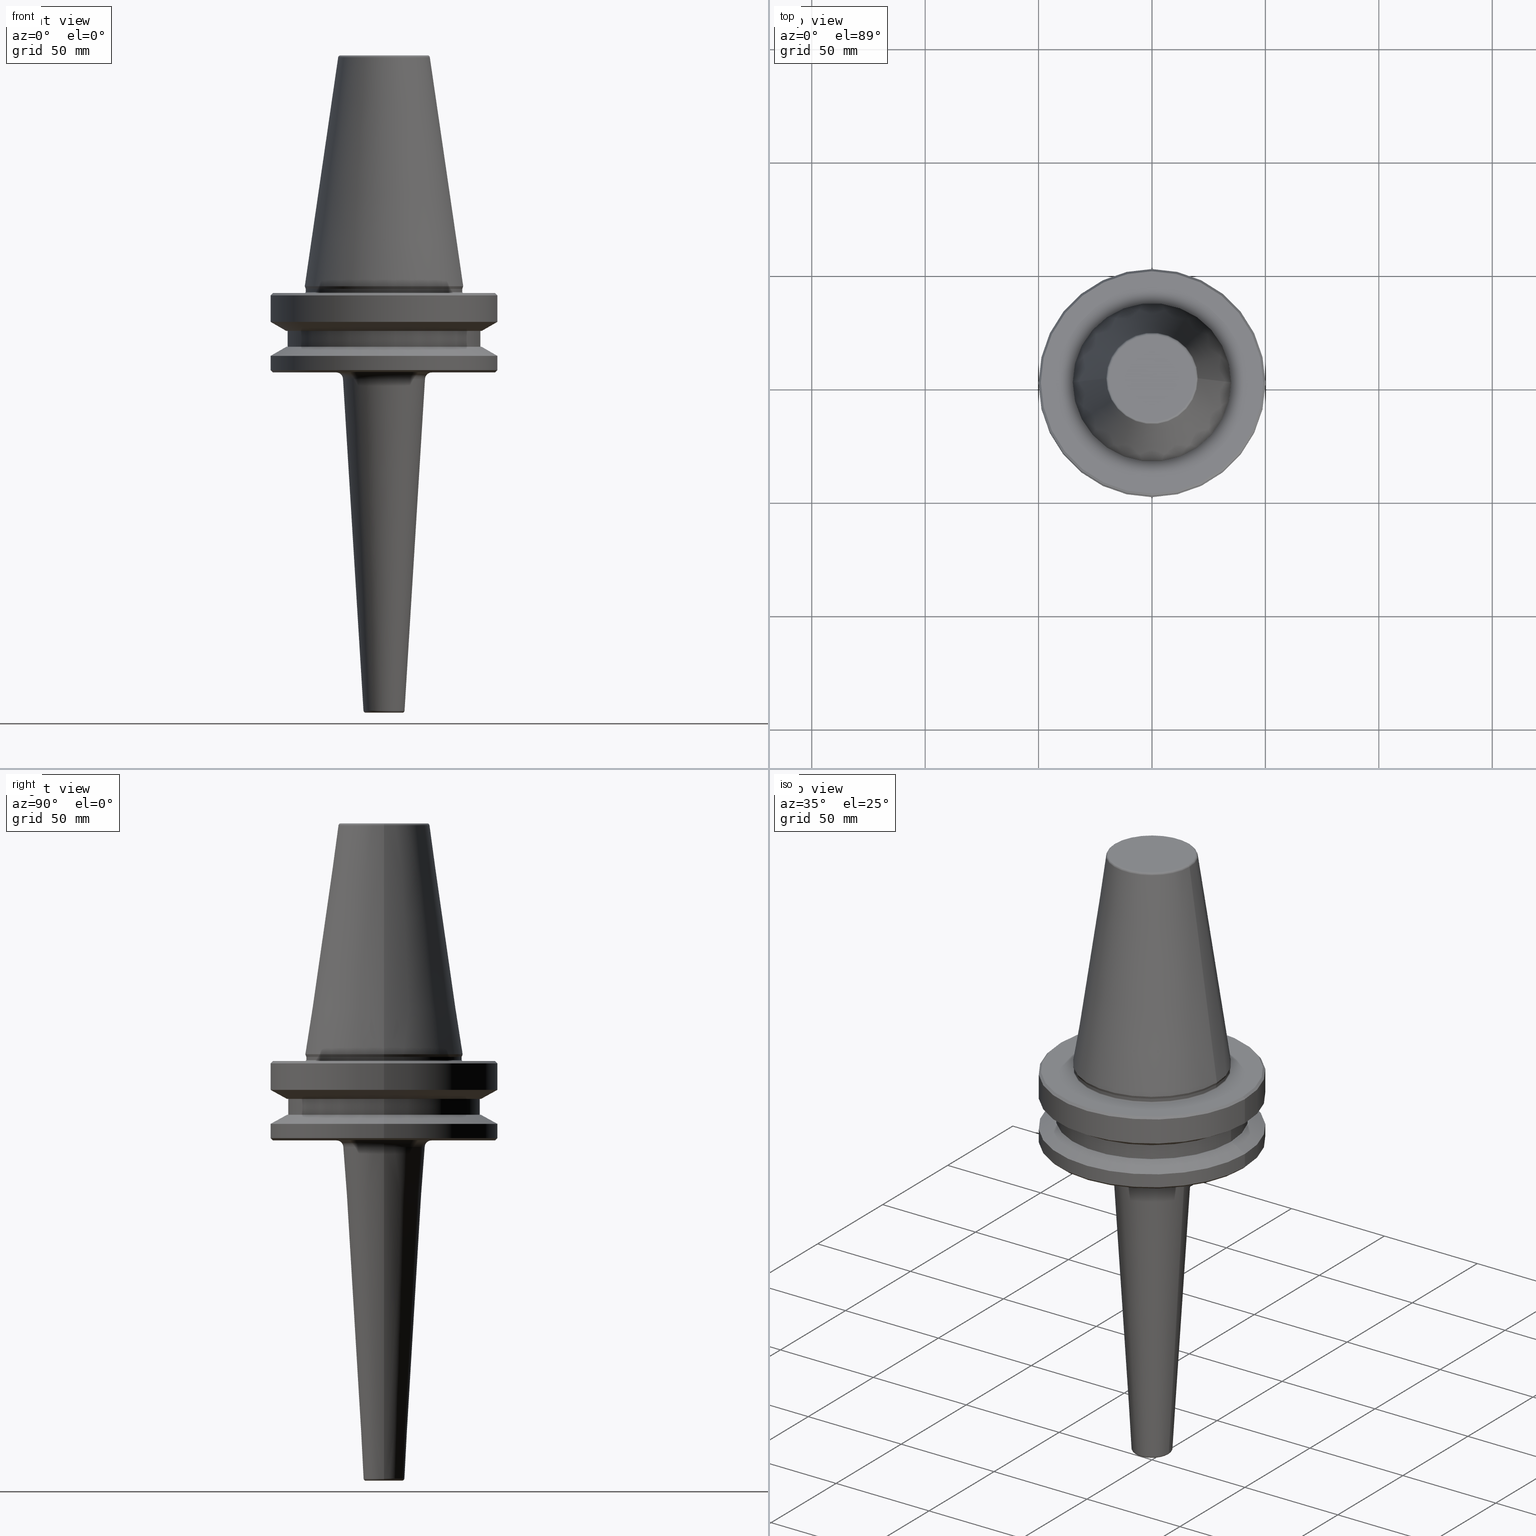
[diagram: canonical four-view strip — front | top / right | iso, engineering-drawing reading convention]
A machine part, canonical four-view strip (front | top / right | iso — engineering-drawing reading convention). The complete STEP part file that produces these views, byte-faithful:
ISO-10303-21;
HEADER;
FILE_DESCRIPTION (( 'STEP AP203' ),
    '1' );
FILE_NAME ('BT50 MCA10 150 AD+B-2.5G 25000 SL.STEP',
    '2019-05-24T10:52:06',
    ( '' ),
    ( '' ),
    'SwSTEP 2.0',
    'SolidWorks 2014',
    '' );
FILE_SCHEMA (( 'CONFIG_CONTROL_DESIGN' ));
ENDSEC;

DATA;
#1 = ORIENTED_EDGE ( 'NONE', *, *, #300, .F. ) ;
#2 = EDGE_CURVE ( 'NONE', #414, #900, #586, .T. ) ;
#3 = EDGE_CURVE ( 'NONE', #913, #152, #542, .T. ) ;
#4 = LOCAL_TIME ( 16, 22, 6.000000000000000000, #213 ) ;
#5 = DIRECTION ( 'NONE',  ( 1.000000000000000000, 0.0000000000000000000, 0.0000000000000000000 ) ) ;
#6 = CARTESIAN_POINT ( 'NONE',  ( 0.0000000000000000000, 0.0000000000000000000, -187.0000000000000000 ) ) ;
#7 = EDGE_CURVE ( 'NONE', #951, #463, #714, .T. ) ;
#8 = ORIENTED_EDGE ( 'NONE', *, *, #226, .T. ) ;
#9 = EDGE_LOOP ( 'NONE', ( #645, #706 ) ) ;
#10 = VERTEX_POINT ( 'NONE', #782 ) ;
#11 = DIRECTION ( 'NONE',  ( 1.000000000000000000, 0.0000000000000000000, 0.0000000000000000000 ) ) ;
#12 = EDGE_LOOP ( 'NONE', ( #454, #73, #790, #142 ) ) ;
#13 = ORIENTED_EDGE ( 'NONE', *, *, #836, .F. ) ;
#14 = CIRCLE ( 'NONE', #589, 1.000000000000000900 ) ;
#15 = EDGE_CURVE ( 'NONE', #568, #960, #564, .T. ) ;
#16 = DIRECTION ( 'NONE',  ( -0.0000000000000000000, -0.0000000000000000000, 1.000000000000000000 ) ) ;
#17 = CIRCLE ( 'NONE', #932, 42.50000000000000000 ) ;
#18 = DIRECTION ( 'NONE',  ( 1.000000000000000000, 0.0000000000000000000, 0.0000000000000000000 ) ) ;
#19 = EDGE_CURVE ( 'NONE', #197, #607, #383, .T. ) ;
#20 = EDGE_LOOP ( 'NONE', ( #945, #495 ) ) ;
#21 = EDGE_CURVE ( 'NONE', #568, #951, #521, .T. ) ;
#22 = DIRECTION ( 'NONE',  ( -1.000000000000000000, 0.0000000000000000000, 0.0000000000000000000 ) ) ;
#23 = UNCERTAINTY_MEASURE_WITH_UNIT (LENGTH_MEASURE( 1.000000000000000100E-005 ), #835, 'distance_accuracy_value', 'NONE');
#24 = CARTESIAN_POINT ( 'NONE',  ( 0.0000000000000000000, 0.0000000000000000000, -188.0000000000000000 ) ) ;
#25 = DIRECTION ( 'NONE',  ( -1.000000000000000000, 0.0000000000000000000, 0.0000000000000000000 ) ) ;
#26 = CALENDAR_DATE ( 2019, 24, 5 ) ;
#27 = DIRECTION ( 'NONE',  ( -0.0000000000000000000, -0.0000000000000000000, 1.000000000000000000 ) ) ;
#28 = CARTESIAN_POINT ( 'NONE',  ( 18.25000000000003600, 0.0000000000000000000, -38.00000000000000700 ) ) ;
#29 = CONICAL_SURFACE ( 'NONE', #974, 34.92499999999999700, 0.1448138465474120600 ) ;
#30 = CARTESIAN_POINT ( 'NONE',  ( 0.0000000000000000000, 0.0000000000000000000, 100.7999999999999800 ) ) ;
#31 = ORIENTED_EDGE ( 'NONE', *, *, #332, .T. ) ;
#32 = EDGE_CURVE ( 'NONE', #602, #260, #355, .T. ) ;
#33 = ORIENTED_EDGE ( 'NONE', *, *, #350, .F. ) ;
#34 = EDGE_CURVE ( 'NONE', #960, #568, #147, .T. ) ;
#35 = DIRECTION ( 'NONE',  ( -0.0000000000000000000, -0.0000000000000000000, 1.000000000000000000 ) ) ;
#36 = ORIENTED_EDGE ( 'NONE', *, *, #825, .T. ) ;
#37 = PRODUCT_DEFINITION_SHAPE ( 'NONE', 'NONE',  #336 ) ;
#38 = ORIENTED_EDGE ( 'NONE', *, *, #709, .T. ) ;
#39 = ADVANCED_FACE ( 'NONE', ( #557 ), #401, .T. ) ;
#40 = VECTOR ( 'NONE', #516, 1000.000000000000000 ) ;
#41 = AXIS2_PLACEMENT_3D ( 'NONE', #172, #712, #639 ) ;
#42 = PERSON_AND_ORGANIZATION ( #53, #186 ) ;
#43 =( NAMED_UNIT ( * ) PLANE_ANGLE_UNIT ( ) SI_UNIT ( $, .RADIAN. ) );
#44 = DIRECTION ( 'NONE',  ( -0.0000000000000000000, -0.0000000000000000000, 1.000000000000000000 ) ) ;
#45 = AXIS2_PLACEMENT_3D ( 'NONE', #987, #479, #323 ) ;
#46 = PERSON_AND_ORGANIZATION_ROLE ( 'creator' ) ;
#47 = SECURITY_CLASSIFICATION ( '', '', #295 ) ;
#48 = EDGE_CURVE ( 'NONE', #463, #152, #118, .T. ) ;
#49 = ORIENTED_EDGE ( 'NONE', *, *, #380, .F. ) ;
#50 = ORIENTED_EDGE ( 'NONE', *, *, #605, .T. ) ;
#51 = ORIENTED_EDGE ( 'NONE', *, *, #929, .T. ) ;
#52 = DIRECTION ( 'NONE',  ( 1.000000000000000000, 0.0000000000000000000, 0.0000000000000000000 ) ) ;
#53 = PERSON ( 'UNSPECIFIED', 'UNSPECIFIED', 'UNSPECIFIED', ('UNSPECIFIED'), ('UNSPECIFIED'), ('UNSPECIFIED') ) ;
#54 = AXIS2_PLACEMENT_3D ( 'NONE', #902, #474, #984 ) ;
#55 = DIRECTION ( 'NONE',  ( -0.0000000000000000000, -0.0000000000000000000, 1.000000000000000000 ) ) ;
#56 = FACE_OUTER_BOUND ( 'NONE', #882, .T. ) ;
#57 = ORIENTED_EDGE ( 'NONE', *, *, #291, .T. ) ;
#58 = FACE_OUTER_BOUND ( 'NONE', #203, .T. ) ;
#59 = DIRECTION ( 'NONE',  ( 0.0000000000000000000, 0.0000000000000000000, -1.000000000000000000 ) ) ;
#60 = CARTESIAN_POINT ( 'NONE',  ( 19.21428326503027200, 0.0000000000000000000, 101.7999999999999800 ) ) ;
#61 = CC_DESIGN_APPROVAL ( #860, ( #47 ) ) ;
#62 = DIRECTION ( 'NONE',  ( -0.0000000000000000000, -0.0000000000000000000, 1.000000000000000000 ) ) ;
#63 = DIRECTION ( 'NONE',  ( 1.000000000000000000, 0.0000000000000000000, 0.0000000000000000000 ) ) ;
#64 = CARTESIAN_POINT ( 'NONE',  ( 0.0000000000000000000, 0.0000000000000000000, -1.167677903268202300 ) ) ;
#65 = LINE ( 'NONE', #687, #262 ) ;
#66 = COORDINATED_UNIVERSAL_TIME_OFFSET ( 5, 30, .AHEAD. ) ;
#67 = DIRECTION ( 'NONE',  ( -0.0000000000000000000, -0.0000000000000000000, 1.000000000000000000 ) ) ;
#68 = CARTESIAN_POINT ( 'NONE',  ( -21.07069875403378100, 2.580416378492559500E-015, -38.00000000000000700 ) ) ;
#69 = VECTOR ( 'NONE', #529, 1000.000000000000000 ) ;
#70 = EDGE_LOOP ( 'NONE', ( #693, #188, #574, #221 ) ) ;
#71 = CARTESIAN_POINT ( 'NONE',  ( 0.0000000000000000000, 0.0000000000000000000, -15.70022000322675400 ) ) ;
#72 = ADVANCED_FACE ( 'NONE', ( #368 ), #918, .T. ) ;
#73 = ORIENTED_EDGE ( 'NONE', *, *, #413, .F. ) ;
#74 = DIRECTION ( 'NONE',  ( -0.0000000000000000000, -0.0000000000000000000, 1.000000000000000000 ) ) ;
#75 = EDGE_CURVE ( 'NONE', #951, #913, #174, .T. ) ;
#76 = ADVANCED_FACE ( 'NONE', ( #314 ), #757, .T. ) ;
#77 = DIRECTION ( 'NONE',  ( 1.224646799147353200E-016, 1.000000000000000000, 0.0000000000000000000 ) ) ;
#78 = ORIENTED_EDGE ( 'NONE', *, *, #268, .T. ) ;
#79 = TOROIDAL_SURFACE ( 'NONE', #45, 35.00000000000000000, 0.5000000000000004400 ) ;
#80 = CARTESIAN_POINT ( 'NONE',  ( -49.00000000000000000, 0.0000000000000000000, -2.999999999999988900 ) ) ;
#81 = CARTESIAN_POINT ( 'NONE',  ( 42.50000000000000000, 0.0000000000000000000, -26.69999999999998900 ) ) ;
#82 = FACE_OUTER_BOUND ( 'NONE', #907, .T. ) ;
#83 = EDGE_CURVE ( 'NONE', #463, #951, #784, .T. ) ;
#84 = EDGE_LOOP ( 'NONE', ( #562, #990 ) ) ;
#85 = PLANE ( 'NONE',  #123 ) ;
#86 = VECTOR ( 'NONE', #451, 1000.000000000000000 ) ;
#87 = ADVANCED_FACE ( 'NONE', ( #576 ), #109, .T. ) ;
#88 = CC_DESIGN_PERSON_AND_ORGANIZATION_ASSIGNMENT ( #854, #767, ( #438 ) ) ;
#89 = DIRECTION ( 'NONE',  ( 1.224646799147353200E-016, 1.000000000000000000, 0.0000000000000000000 ) ) ;
#90 = LINE ( 'NONE', #157, #523 ) ;
#91 = LOCAL_TIME ( 16, 22, 6.000000000000000000, #284 ) ;
#92 = DIRECTION ( 'NONE',  ( -0.0000000000000000000, -0.0000000000000000000, 1.000000000000000000 ) ) ;
#93 = CARTESIAN_POINT ( 'NONE',  ( 0.0000000000000000000, 0.0000000000000000000, -3.999999999999989800 ) ) ;
#94 = FACE_OUTER_BOUND ( 'NONE', #400, .T. ) ;
#95 = FACE_OUTER_BOUND ( 'NONE', #584, .T. ) ;
#96 = ORIENTED_EDGE ( 'NONE', *, *, #885, .F. ) ;
#97 = EDGE_CURVE ( 'NONE', #346, #260, #729, .T. ) ;
#98 = MANIFOLD_SOLID_BREP ( 'Fillet1', #778 ) ;
#99 = ORIENTED_EDGE ( 'NONE', *, *, #775, .F. ) ;
#100 = EDGE_LOOP ( 'NONE', ( #753, #985, #169, #96 ) ) ;
#101 = AXIS2_PLACEMENT_3D ( 'NONE', #683, #249, #160 ) ;
#102 = DIRECTION ( 'NONE',  ( -0.0000000000000000000, -0.0000000000000000000, 1.000000000000000000 ) ) ;
#103 = ORIENTED_EDGE ( 'NONE', *, *, #216, .T. ) ;
#104 = VECTOR ( 'NONE', #867, 999.9999999999998900 ) ;
#105 = CARTESIAN_POINT ( 'NONE',  ( 50.00000000000000000, 0.0000000000000000000, 124.5046326327850600 ) ) ;
#106 = CIRCLE ( 'NONE', #980, 34.50000000000000000 ) ;
#107 = DIRECTION ( 'NONE',  ( 0.0000000000000000000, -0.0000000000000000000, 1.000000000000000000 ) ) ;
#108 = AXIS2_PLACEMENT_3D ( 'NONE', #146, #995, #498 ) ;
#109 = CONICAL_SURFACE ( 'NONE', #1000, 50.00000000000000000, 1.047197551196597200 ) ;
#110 = DIRECTION ( 'NONE',  ( -0.0000000000000000000, -0.0000000000000000000, 1.000000000000000000 ) ) ;
#111 = FACE_BOUND ( 'NONE', #634, .T. ) ;
#112 = CC_DESIGN_SECURITY_CLASSIFICATION ( #47, ( #438 ) ) ;
#113 = DIRECTION ( 'NONE',  ( 1.000000000000000000, 0.0000000000000000000, 0.0000000000000000000 ) ) ;
#114 = FACE_OUTER_BOUND ( 'NONE', #256, .T. ) ;
#115 = EDGE_CURVE ( 'NONE', #414, #913, #673, .T. ) ;
#116 = EDGE_LOOP ( 'NONE', ( #33, #989, #393, #1 ) ) ;
#117 = EDGE_CURVE ( 'NONE', #152, #913, #546, .T. ) ;
#118 = LINE ( 'NONE', #690, #967 ) ;
#119 = DIRECTION ( 'NONE',  ( -0.0000000000000000000, -0.0000000000000000000, 1.000000000000000000 ) ) ;
#120 = FACE_OUTER_BOUND ( 'NONE', #264, .T. ) ;
#121 = DIRECTION ( 'NONE',  ( 1.000000000000000000, 0.0000000000000000000, 0.0000000000000000000 ) ) ;
#122 = ORIENTED_EDGE ( 'NONE', *, *, #205, .T. ) ;
#123 = AXIS2_PLACEMENT_3D ( 'NONE', #259, #935, #432 ) ;
#124 = CARTESIAN_POINT ( 'NONE',  ( 21.07069875403378100, 0.0000000000000000000, -38.00000000000000700 ) ) ;
#125 = ADVANCED_FACE ( 'NONE', ( #331 ), #719, .T. ) ;
#126 = EDGE_CURVE ( 'NONE', #900, #414, #912, .T. ) ;
#127 = CARTESIAN_POINT ( 'NONE',  ( -50.00000000000000000, 6.123233995736766100E-015, -3.999999999999989800 ) ) ;
#128 = ORIENTED_EDGE ( 'NONE', *, *, #413, .T. ) ;
#129 = EDGE_LOOP ( 'NONE', ( #391, #424, #306, #657 ) ) ;
#130 = APPROVAL_STATUS ( 'not_yet_approved' ) ;
#131 = CARTESIAN_POINT ( 'NONE',  ( 0.0000000000000000000, 0.0000000000000000000, -1.167677903268202300 ) ) ;
#132 = VERTEX_POINT ( 'NONE', #659 ) ;
#133 = AXIS2_PLACEMENT_3D ( 'NONE', #583, #738, #448 ) ;
#134 = VECTOR ( 'NONE', #440, 1000.000000000000000 ) ;
#135 = PERSON_AND_ORGANIZATION ( #53, #186 ) ;
#136 = ADVANCED_FACE ( 'NONE', ( #58 ), #933, .F. ) ;
#137 = EDGE_CURVE ( 'NONE', #900, #152, #505, .T. ) ;
#138 = AXIS2_PLACEMENT_3D ( 'NONE', #993, #857, #239 ) ;
#139 = DIRECTION ( 'NONE',  ( 1.000000000000000000, 0.0000000000000000000, 0.0000000000000000000 ) ) ;
#140 = ADVANCED_FACE ( 'NONE', ( #509 ), #878, .T. ) ;
#141 = CARTESIAN_POINT ( 'NONE',  ( 0.0000000000000000000, 0.0000000000000000000, -2.500000000000002200 ) ) ;
#142 = ORIENTED_EDGE ( 'NONE', *, *, #910, .T. ) ;
#143 = CARTESIAN_POINT ( 'NONE',  ( -49.00000000000000000, 6.062001655779398500E-015, -38.00000000000002100 ) ) ;
#144 = CIRCLE ( 'NONE', #720, 35.00000000000000000 ) ;
#145 = CARTESIAN_POINT ( 'NONE',  ( -50.00000000000000000, 0.0000000000000000000, -30.69977999677324500 ) ) ;
#146 = CARTESIAN_POINT ( 'NONE',  ( 0.0000000000000000000, 0.0000000000000000000, -26.69999999999998900 ) ) ;
#147 = CIRCLE ( 'NONE', #625, 49.00000000000000000 ) ;
#148 = DIRECTION ( 'NONE',  ( -0.0000000000000000000, -0.0000000000000000000, 1.000000000000000000 ) ) ;
#149 = FACE_OUTER_BOUND ( 'NONE', #9, .T. ) ;
#150 = ORIENTED_EDGE ( 'NONE', *, *, #566, .T. ) ;
#151 = CIRCLE ( 'NONE', #482, 8.059767081988827200 ) ;
#152 = VERTEX_POINT ( 'NONE', #952 ) ;
#153 = APPROVAL_DATE_TIME ( #301, #998 ) ;
#154 = EDGE_LOOP ( 'NONE', ( #103, #740, #823, #842 ) ) ;
#155 = DIRECTION ( 'NONE',  ( -0.0000000000000000000, -0.0000000000000000000, 1.000000000000000000 ) ) ;
#156 = AXIS2_PLACEMENT_3D ( 'NONE', #330, #541, #717 ) ;
#157 = CARTESIAN_POINT ( 'NONE',  ( 49.00000000000000000, 0.0000000000000000000, -38.00000000000002100 ) ) ;
#158 = ORIENTED_EDGE ( 'NONE', *, *, #285, .T. ) ;
#159 = EDGE_CURVE ( 'NONE', #132, #581, #892, .T. ) ;
#160 = DIRECTION ( 'NONE',  ( 1.000000000000000000, 0.0000000000000000000, 0.0000000000000000000 ) ) ;
#161 = ORIENTED_EDGE ( 'NONE', *, *, #21, .T. ) ;
#162 = DIRECTION ( 'NONE',  ( 1.000000000000000000, 0.0000000000000000000, 0.0000000000000000000 ) ) ;
#163 = ORIENTED_EDGE ( 'NONE', *, *, #320, .F. ) ;
#164 = CARTESIAN_POINT ( 'NONE',  ( 0.0000000000000000000, 0.0000000000000000000, -26.69999999999998900 ) ) ;
#165 = VECTOR ( 'NONE', #811, 1000.000000000000000 ) ;
#166 = VECTOR ( 'NONE', #274, 1000.000000000000000 ) ;
#167 = DIRECTION ( 'NONE',  ( -0.0000000000000000000, -0.0000000000000000000, 1.000000000000000000 ) ) ;
#168 = LOCAL_TIME ( 16, 22, 6.000000000000000000, #385 ) ;
#169 = ORIENTED_EDGE ( 'NONE', *, *, #178, .T. ) ;
#170 = EDGE_CURVE ( 'NONE', #486, #898, #489, .T. ) ;
#171 = EDGE_LOOP ( 'NONE', ( #406, #549, #207, #190 ) ) ;
#172 = CARTESIAN_POINT ( 'NONE',  ( 0.0000000000000000000, 0.0000000000000000000, -19.70000000000001000 ) ) ;
#173 = DIRECTION ( 'NONE',  ( -0.0000000000000000000, -0.0000000000000000000, 1.000000000000000000 ) ) ;
#174 = LINE ( 'NONE', #792, #338 ) ;
#175 = EDGE_CURVE ( 'NONE', #197, #132, #531, .T. ) ;
#176 = FACE_OUTER_BOUND ( 'NONE', #100, .T. ) ;
#177 = CIRCLE ( 'NONE', #41, 43.07217782649103600 ) ;
#178 = EDGE_CURVE ( 'NONE', #927, #805, #699, .T. ) ;
#179 = VERTEX_POINT ( 'NONE', #587 ) ;
#180 = DIRECTION ( 'NONE',  ( -1.000000000000000000, 0.0000000000000000000, 0.0000000000000000000 ) ) ;
#181 = DIRECTION ( 'NONE',  ( -0.0000000000000000000, -0.0000000000000000000, 1.000000000000000000 ) ) ;
#182 = CARTESIAN_POINT ( 'NONE',  ( 43.07217782649103600, 0.0000000000000000000, -19.70000000000001000 ) ) ;
#183 = CARTESIAN_POINT ( 'NONE',  ( 0.0000000000000000000, 0.0000000000000000000, 100.7999999999999800 ) ) ;
#184 = CIRCLE ( 'NONE', #405, 50.00000000000000000 ) ;
#185 = CC_DESIGN_PERSON_AND_ORGANIZATION_ASSIGNMENT ( #655, #841, ( #47 ) ) ;
#186 = ORGANIZATION ( 'UNSPECIFIED', 'UNSPECIFIED', '' ) ;
#187 = TOROIDAL_SURFACE ( 'NONE', #499, 8.059767081988827200, 1.000000000000000200 ) ;
#188 = ORIENTED_EDGE ( 'NONE', *, *, #702, .T. ) ;
#189 = ADVANCED_FACE ( 'NONE', ( #114 ), #813, .T. ) ;
#190 = ORIENTED_EDGE ( 'NONE', *, *, #3, .F. ) ;
#191 = EDGE_LOOP ( 'NONE', ( #341, #322, #788, #781 ) ) ;
#192 = DIRECTION ( 'NONE',  ( 1.000000000000000000, 0.0000000000000000000, 0.0000000000000000000 ) ) ;
#193 = CARTESIAN_POINT ( 'NONE',  ( 0.0000000000000000000, 0.0000000000000000000, -41.00000000000000700 ) ) ;
#194 = CARTESIAN_POINT ( 'NONE',  ( 0.0000000000000000000, 0.0000000000000000000, 124.5046326327850600 ) ) ;
#195 = ORIENTED_EDGE ( 'NONE', *, *, #519, .T. ) ;
#196 = ORIENTED_EDGE ( 'NONE', *, *, #205, .F. ) ;
#197 = VERTEX_POINT ( 'NONE', #124 ) ;
#198 = ADVANCED_FACE ( 'NONE', ( #874 ), #201, .T. ) ;
#199 = AXIS2_PLACEMENT_3D ( 'NONE', #141, #481, #680 ) ;
#200 = LINE ( 'NONE', #868, #559 ) ;
#201 = CONICAL_SURFACE ( 'NONE', #517, 43.07217782649103600, 1.047197551196598100 ) ;
#202 = PLANE ( 'NONE',  #658 ) ;
#203 = EDGE_LOOP ( 'NONE', ( #599, #752, #828, #924 ) ) ;
#204 = DIRECTION ( 'NONE',  ( 1.000000000000000000, 0.0000000000000000000, 0.0000000000000000000 ) ) ;
#205 = EDGE_CURVE ( 'NONE', #644, #581, #65, .T. ) ;
#206 = CARTESIAN_POINT ( 'NONE',  ( 34.50000000000000000, 0.0000000000000000000, -2.499999999999988500 ) ) ;
#207 = ORIENTED_EDGE ( 'NONE', *, *, #48, .T. ) ;
#208 = DIRECTION ( 'NONE',  ( -0.0000000000000000000, -0.0000000000000000000, 1.000000000000000000 ) ) ;
#209 = EDGE_LOOP ( 'NONE', ( #772, #271, #996, #594 ) ) ;
#210 = AXIS2_PLACEMENT_3D ( 'NONE', #754, #282, #832 ) ;
#211 = AXIS2_PLACEMENT_3D ( 'NONE', #938, #173, #18 ) ;
#212 = ORIENTED_EDGE ( 'NONE', *, *, #115, .T. ) ;
#213 = COORDINATED_UNIVERSAL_TIME_OFFSET ( 5, 30, .AHEAD. ) ;
#214 = DIRECTION ( 'NONE',  ( -0.0000000000000000000, -0.0000000000000000000, 1.000000000000000000 ) ) ;
#215 = VECTOR ( 'NONE', #247, 1000.000000000000000 ) ;
#216 = EDGE_CURVE ( 'NONE', #537, #618, #151, .T. ) ;
#217 = CARTESIAN_POINT ( 'NONE',  ( 0.0000000000000000000, 0.0000000000000000000, -30.69977999677324500 ) ) ;
#218 = PERSON_AND_ORGANIZATION_ROLE ( 'creator' ) ;
#219 = ADVANCED_FACE ( 'NONE', ( #578, #1001 ), #808, .F. ) ;
#220 = EDGE_CURVE ( 'NONE', #805, #737, #404, .T. ) ;
#221 = ORIENTED_EDGE ( 'NONE', *, *, #97, .F. ) ;
#222 = DIRECTION ( 'NONE',  ( -0.7071067811865474600, 0.0000000000000000000, -0.7071067811865475700 ) ) ;
#223 = CONICAL_SURFACE ( 'NONE', #429, 50.00000000000000000, 0.7853981633974482800 ) ;
#224 = ORIENTED_EDGE ( 'NONE', *, *, #220, .F. ) ;
#225 = AXIS2_PLACEMENT_3D ( 'NONE', #571, #16, #502 ) ;
#226 = EDGE_CURVE ( 'NONE', #930, #883, #944, .T. ) ;
#227 = DIRECTION ( 'NONE',  ( 1.000000000000000000, 0.0000000000000000000, 0.0000000000000000000 ) ) ;
#228 = FACE_OUTER_BOUND ( 'NONE', #426, .T. ) ;
#229 = CARTESIAN_POINT ( 'NONE',  ( 0.0000000000000000000, 0.0000000000000000000, -40.81535075687303800 ) ) ;
#230 = EDGE_CURVE ( 'NONE', #615, #737, #628, .T. ) ;
#231 = DIRECTION ( 'NONE',  ( -0.0000000000000000000, -0.0000000000000000000, 1.000000000000000000 ) ) ;
#232 = CARTESIAN_POINT ( 'NONE',  ( -50.00000000000000000, 6.123233995736766100E-015, 124.5046326327850600 ) ) ;
#233 = ORIENTED_EDGE ( 'NONE', *, *, #300, .T. ) ;
#234 = DIRECTION ( 'NONE',  ( -0.0000000000000000000, -0.0000000000000000000, 1.000000000000000000 ) ) ;
#235 = DIRECTION ( 'NONE',  ( 0.0000000000000000000, 0.0000000000000000000, -1.000000000000000000 ) ) ;
#236 = AXIS2_PLACEMENT_3D ( 'NONE', #703, #67, #5 ) ;
#237 = DIRECTION ( 'NONE',  ( 1.000000000000000000, 0.0000000000000000000, 0.0000000000000000000 ) ) ;
#238 = ORIENTED_EDGE ( 'NONE', *, *, #544, .T. ) ;
#239 = DIRECTION ( 'NONE',  ( 1.000000000000000000, 0.0000000000000000000, 0.0000000000000000000 ) ) ;
#240 = LOCAL_TIME ( 16, 22, 6.000000000000000000, #466 ) ;
#241 = CARTESIAN_POINT ( 'NONE',  ( -34.92499999999999700, 0.0000000000000000000, 0.0000000000000000000 ) ) ;
#242 = ADVANCED_FACE ( 'NONE', ( #969 ), #347, .F. ) ;
#243 = ORIENTED_EDGE ( 'NONE', *, *, #3, .T. ) ;
#244 = VERTEX_POINT ( 'NONE', #816 ) ;
#245 = EDGE_CURVE ( 'NONE', #927, #615, #787, .T. ) ;
#246 = ORIENTED_EDGE ( 'NONE', *, *, #245, .F. ) ;
#247 = DIRECTION ( 'NONE',  ( -0.0000000000000000000, -0.0000000000000000000, 1.000000000000000000 ) ) ;
#248 = EDGE_CURVE ( 'NONE', #898, #179, #343, .T. ) ;
#249 = DIRECTION ( 'NONE',  ( -0.0000000000000000000, -0.0000000000000000000, 1.000000000000000000 ) ) ;
#250 = DIRECTION ( 'NONE',  ( -0.0000000000000000000, -0.0000000000000000000, 1.000000000000000000 ) ) ;
#251 = ORIENTED_EDGE ( 'NONE', *, *, #760, .F. ) ;
#252 = EDGE_CURVE ( 'NONE', #486, #536, #771, .T. ) ;
#253 = DIRECTION ( 'NONE',  ( 1.000000000000000000, 0.0000000000000000000, 0.0000000000000000000 ) ) ;
#254 = TOROIDAL_SURFACE ( 'NONE', #133, 8.059767081988827200, 1.000000000000000200 ) ;
#255 = CARTESIAN_POINT ( 'NONE',  ( 42.50000000000000000, 0.0000000000000000000, -19.70000000000001000 ) ) ;
#256 = EDGE_LOOP ( 'NONE', ( #443, #837, #623, #485 ) ) ;
#257 = AXIS2_PLACEMENT_3D ( 'NONE', #612, #214, #192 ) ;
#258 = CARTESIAN_POINT ( 'NONE',  ( 0.0000000000000000000, 0.0000000000000000000, -41.00000000000000700 ) ) ;
#259 = CARTESIAN_POINT ( 'NONE',  ( 0.0000000000000000000, 35.00000000000000000, -3.000000000000002700 ) ) ;
#260 = VERTEX_POINT ( 'NONE', #397 ) ;
#261 = DIRECTION ( 'NONE',  ( 1.000000000000000000, 0.0000000000000000000, 0.0000000000000000000 ) ) ;
#262 = VECTOR ( 'NONE', #570, 1000.000000000000000 ) ;
#263 = APPROVAL_DATE_TIME ( #491, #297 ) ;
#264 = EDGE_LOOP ( 'NONE', ( #196, #31, #38, #806 ) ) ;
#265 = DIRECTION ( 'NONE',  ( 0.0000000000000000000, 0.0000000000000000000, -1.000000000000000000 ) ) ;
#266 = DIRECTION ( 'NONE',  ( 1.000000000000000000, 0.0000000000000000000, 0.0000000000000000000 ) ) ;
#267 = FACE_OUTER_BOUND ( 'NONE', #171, .T. ) ;
#268 = EDGE_CURVE ( 'NONE', #898, #486, #177, .T. ) ;
#269 = DIRECTION ( 'NONE',  ( -0.0000000000000000000, -0.0000000000000000000, 1.000000000000000000 ) ) ;
#270 = DIRECTION ( 'NONE',  ( 1.000000000000000000, 0.0000000000000000000, 0.0000000000000000000 ) ) ;
#271 = ORIENTED_EDGE ( 'NONE', *, *, #662, .T. ) ;
#272 = CARTESIAN_POINT ( 'NONE',  ( 0.0000000000000000000, 0.0000000000000000000, -15.70022000322675400 ) ) ;
#273 = CARTESIAN_POINT ( 'NONE',  ( -43.07217782649105000, 0.0000000000000000000, -26.69999999999998900 ) ) ;
#274 = DIRECTION ( 'NONE',  ( -0.7071067811865474600, 8.659560562354931600E-017, 0.7071067811865475700 ) ) ;
#275 = CARTESIAN_POINT ( 'NONE',  ( 50.00000000000000000, 6.123233995736766100E-015, -30.69977999677324500 ) ) ;
#276 = CIRCLE ( 'NONE', #921, 0.5000000000000004400 ) ;
#277 = EDGE_CURVE ( 'NONE', #179, #427, #953, .T. ) ;
#278 = ORIENTED_EDGE ( 'NONE', *, *, #226, .F. ) ;
#279 = TOROIDAL_SURFACE ( 'NONE', #199, 35.00000000000000000, 0.5000000000000004400 ) ;
#280 = CARTESIAN_POINT ( 'NONE',  ( -50.00000000000000000, 6.123233995736766100E-015, -30.69977999677324500 ) ) ;
#281 = ORIENTED_EDGE ( 'NONE', *, *, #709, .F. ) ;
#282 = DIRECTION ( 'NONE',  ( -0.0000000000000000000, -0.0000000000000000000, 1.000000000000000000 ) ) ;
#283 = DIRECTION ( 'NONE',  ( -0.0000000000000000000, -0.0000000000000000000, 1.000000000000000000 ) ) ;
#284 = COORDINATED_UNIVERSAL_TIME_OFFSET ( 5, 30, .AHEAD. ) ;
#285 = EDGE_CURVE ( 'NONE', #536, #671, #798, .T. ) ;
#286 = APPROVAL_PERSON_ORGANIZATION ( #511, #297, #682 ) ;
#287 = DIRECTION ( 'NONE',  ( 0.0000000000000000000, 0.0000000000000000000, -1.000000000000000000 ) ) ;
#288 = DIRECTION ( 'NONE',  ( -0.0000000000000000000, -0.0000000000000000000, 1.000000000000000000 ) ) ;
#289 = CONICAL_SURFACE ( 'NONE', #442, 34.50000000000000000, 0.3490658503988654500 ) ;
#290 = ORIENTED_EDGE ( 'NONE', *, *, #661, .T. ) ;
#291 = EDGE_CURVE ( 'NONE', #179, #536, #184, .T. ) ;
#292 = DIRECTION ( 'NONE',  ( 1.000000000000000000, 0.0000000000000000000, 0.0000000000000000000 ) ) ;
#293 = DIRECTION ( 'NONE',  ( -0.0000000000000000000, -0.0000000000000000000, 1.000000000000000000 ) ) ;
#294 = EDGE_LOOP ( 'NONE', ( #796, #455, #224, #535 ) ) ;
#295 = SECURITY_CLASSIFICATION_LEVEL ( 'unclassified' ) ;
#296 = ORIENTED_EDGE ( 'NONE', *, *, #332, .F. ) ;
#297 = APPROVAL ( #130, 'UNSPECIFIED' ) ;
#298 = AXIS2_PLACEMENT_3D ( 'NONE', #436, #872, #333 ) ;
#299 = DIRECTION ( 'NONE',  ( -1.000000000000000000, 1.224646799147353500E-016, 0.0000000000000000000 ) ) ;
#300 = EDGE_CURVE ( 'NONE', #319, #671, #585, .T. ) ;
#301 = DATE_AND_TIME ( #955, #168 ) ;
#302 = FACE_OUTER_BOUND ( 'NONE', #116, .T. ) ;
#303 = CARTESIAN_POINT ( 'NONE',  ( 0.0000000000000000000, 0.0000000000000000000, -2.499999999999988500 ) ) ;
#304 = CIRCLE ( 'NONE', #345, 18.07638670332619700 ) ;
#305 = EDGE_CURVE ( 'NONE', #427, #671, #354, .T. ) ;
#306 = ORIENTED_EDGE ( 'NONE', *, *, #358, .T. ) ;
#307 = CYLINDRICAL_SURFACE ( 'NONE', #851, 34.50000000000000000 ) ;
#308 = DIRECTION ( 'NONE',  ( 1.000000000000000000, 0.0000000000000000000, 0.0000000000000000000 ) ) ;
#309 = DIRECTION ( 'NONE',  ( 1.000000000000000000, 0.0000000000000000000, 0.0000000000000000000 ) ) ;
#310 = CIRCLE ( 'NONE', #457, 49.00000000000000000 ) ;
#311 = CARTESIAN_POINT ( 'NONE',  ( 0.0000000000000000000, 0.0000000000000000000, -30.69977999677324500 ) ) ;
#312 = DIRECTION ( 'NONE',  ( -0.0000000000000000000, -0.0000000000000000000, 1.000000000000000000 ) ) ;
#313 = CARTESIAN_POINT ( 'NONE',  ( -18.07638670332620000, 2.213718911637821000E-015, -40.81535075687303800 ) ) ;
#314 = FACE_OUTER_BOUND ( 'NONE', #209, .T. ) ;
#315 = CARTESIAN_POINT ( 'NONE',  ( 19.21428326503027200, 0.0000000000000000000, 100.7999999999999800 ) ) ;
#316 = CIRCLE ( 'NONE', #210, 8.059767081988827200 ) ;
#317 = ORIENTED_EDGE ( 'NONE', *, *, #760, .T. ) ;
#318 = CARTESIAN_POINT ( 'NONE',  ( 8.059767081988827200, 0.0000000000000000000, -188.0000000000000300 ) ) ;
#319 = VERTEX_POINT ( 'NONE', #80 ) ;
#320 = EDGE_CURVE ( 'NONE', #762, #665, #723, .T. ) ;
#321 = CARTESIAN_POINT ( 'NONE',  ( 0.0000000000000000000, 0.0000000000000000000, -19.70000000000001000 ) ) ;
#322 = ORIENTED_EDGE ( 'NONE', *, *, #137, .T. ) ;
#323 = DIRECTION ( 'NONE',  ( 1.000000000000000000, 0.0000000000000000000, 0.0000000000000000000 ) ) ;
#324 = DIRECTION ( 'NONE',  ( 1.000000000000000000, 0.0000000000000000000, 0.0000000000000000000 ) ) ;
#325 = CIRCLE ( 'NONE', #668, 0.5000000000000004400 ) ;
#326 = DIRECTION ( 'NONE',  ( -0.8660254037844388200, 1.060575238724907200E-016, 0.4999999999999997200 ) ) ;
#327 = CONICAL_SURFACE ( 'NONE', #956, 43.07217782649103600, 1.047197551196598100 ) ;
#328 = DIRECTION ( 'NONE',  ( 1.000000000000000000, 0.0000000000000000000, 0.0000000000000000000 ) ) ;
#329 = CARTESIAN_POINT ( 'NONE',  ( 21.07069875403378100, 0.0000000000000000000, -41.00000000000000700 ) ) ;
#330 = CARTESIAN_POINT ( 'NONE',  ( 0.0000000000000000000, 0.0000000000000000000, 0.0000000000000000000 ) ) ;
#331 = FACE_OUTER_BOUND ( 'NONE', #936, .T. ) ;
#332 = EDGE_CURVE ( 'NONE', #644, #10, #530, .T. ) ;
#333 = DIRECTION ( 'NONE',  ( 1.000000000000000000, 0.0000000000000000000, 0.0000000000000000000 ) ) ;
#334 = CARTESIAN_POINT ( 'NONE',  ( 0.0000000000000000000, 0.0000000000000000000, -19.70000000000001000 ) ) ;
#335 = ORIENTED_EDGE ( 'NONE', *, *, #159, .F. ) ;
#336 = PRODUCT_DEFINITION ( 'UNKNOWN', '', #438, #973 ) ;
#337 = EDGE_CURVE ( 'NONE', #671, #427, #365, .T. ) ;
#338 = VECTOR ( 'NONE', #1003, 1000.000000000000000 ) ;
#339 = EDGE_CURVE ( 'NONE', #664, #427, #698, .T. ) ;
#340 = CIRCLE ( 'NONE', #423, 1.000000000000000900 ) ;
#341 = ORIENTED_EDGE ( 'NONE', *, *, #126, .F. ) ;
#342 = CARTESIAN_POINT ( 'NONE',  ( 0.0000000000000000000, 0.0000000000000000000, -26.69999999999998900 ) ) ;
#343 = LINE ( 'NONE', #182, #165 ) ;
#344 = ADVANCED_FACE ( 'NONE', ( #111, #551 ), #795, .F. ) ;
#345 = AXIS2_PLACEMENT_3D ( 'NONE', #229, #697, #402 ) ;
#346 = VERTEX_POINT ( 'NONE', #858 ) ;
#347 = PLANE ( 'NONE',  #435 ) ;
#348 = AXIS2_PLACEMENT_3D ( 'NONE', #651, #89, #575 ) ;
#349 = DIRECTION ( 'NONE',  ( 1.000000000000000000, 0.0000000000000000000, 0.0000000000000000000 ) ) ;
#350 = EDGE_CURVE ( 'NONE', #664, #319, #310, .T. ) ;
#351 = DIRECTION ( 'NONE',  ( 0.0000000000000000000, 0.0000000000000000000, -1.000000000000000000 ) ) ;
#352 = DIRECTION ( 'NONE',  ( -1.000000000000000000, 1.224646799147349500E-016, 0.0000000000000000000 ) ) ;
#353 = AXIS2_PLACEMENT_3D ( 'NONE', #895, #375, #292 ) ;
#354 = CIRCLE ( 'NONE', #739, 50.00000000000000000 ) ;
#355 = LINE ( 'NONE', #826, #104 ) ;
#356 = CARTESIAN_POINT ( 'NONE',  ( 0.0000000000000000000, 0.0000000000000000000, -2.999999999999988900 ) ) ;
#357 = CARTESIAN_POINT ( 'NONE',  ( 34.92499999999999700, 4.277078946022130900E-015, 0.0000000000000000000 ) ) ;
#358 = EDGE_CURVE ( 'NONE', #244, #446, #144, .T. ) ;
#359 = DIRECTION ( 'NONE',  ( -1.000000000000000000, 0.0000000000000000000, -0.0000000000000000000 ) ) ;
#360 = CARTESIAN_POINT ( 'NONE',  ( -35.00000000000000000, 4.286263797015736500E-015, -2.500000000000002200 ) ) ;
#361 = ORIENTED_EDGE ( 'NONE', *, *, #688, .F. ) ;
#362 = ORIENTED_EDGE ( 'NONE', *, *, #910, .F. ) ;
#363 = CARTESIAN_POINT ( 'NONE',  ( 34.92499999999999700, 0.0000000000000000000, 0.0000000000000000000 ) ) ;
#364 = ORIENTED_EDGE ( 'NONE', *, *, #277, .T. ) ;
#365 = CIRCLE ( 'NONE', #236, 50.00000000000000000 ) ;
#366 = CARTESIAN_POINT ( 'NONE',  ( 0.0000000000000000000, 0.0000000000000000000, 0.0000000000000000000 ) ) ;
#367 = DIRECTION ( 'NONE',  ( 1.000000000000000000, 0.0000000000000000000, 0.0000000000000000000 ) ) ;
#368 = FACE_OUTER_BOUND ( 'NONE', #889, .T. ) ;
#369 = CARTESIAN_POINT ( 'NONE',  ( 0.0000000000000000000, 42.50000000000000000, -26.70000000000000300 ) ) ;
#370 = CYLINDRICAL_SURFACE ( 'NONE', #211, 42.50000000000000000 ) ;
#371 = EDGE_CURVE ( 'NONE', #665, #797, #890, .T. ) ;
#372 = VECTOR ( 'NONE', #92, 1000.000000000000000 ) ;
#373 = EDGE_LOOP ( 'NONE', ( #99, #392 ) ) ;
#374 = ADVANCED_FACE ( 'NONE', ( #779 ), #327, .T. ) ;
#375 = DIRECTION ( 'NONE',  ( 0.0000000000000000000, 0.0000000000000000000, 1.000000000000000000 ) ) ;
#376 = ORIENTED_EDGE ( 'NONE', *, *, #807, .T. ) ;
#377 = PERSON_AND_ORGANIZATION_ROLE ( 'design_owner' ) ;
#378 = DIRECTION ( 'NONE',  ( 0.1443082272673000800, 1.767266086135278300E-017, -0.9895327864921754600 ) ) ;
#379 = ORIENTED_EDGE ( 'NONE', *, *, #32, .F. ) ;
#380 = EDGE_CURVE ( 'NONE', #960, #463, #90, .T. ) ;
#381 = CARTESIAN_POINT ( 'NONE',  ( 0.0000000000000000000, 0.0000000000000000000, -30.69977999677324500 ) ) ;
#382 = DATE_TIME_ROLE ( 'classification_date' ) ;
#383 = CIRCLE ( 'NONE', #543, 21.07069875403378100 ) ;
#384 = DIRECTION ( 'NONE',  ( 1.224646799147353200E-016, 1.000000000000000000, 0.0000000000000000000 ) ) ;
#385 = COORDINATED_UNIVERSAL_TIME_OFFSET ( 5, 30, .AHEAD. ) ;
#386 = EDGE_CURVE ( 'NONE', #883, #260, #909, .T. ) ;
#387 = DIRECTION ( 'NONE',  ( 1.000000000000000000, 0.0000000000000000000, 0.0000000000000000000 ) ) ;
#388 = FACE_OUTER_BOUND ( 'NONE', #154, .T. ) ;
#389 = AXIS2_PLACEMENT_3D ( 'NONE', #986, #44, #721 ) ;
#390 = CARTESIAN_POINT ( 'NONE',  ( -8.059767081988827200, 9.870367958830820000E-016, -187.0000000000000000 ) ) ;
#391 = ORIENTED_EDGE ( 'NONE', *, *, #662, .F. ) ;
#392 = ORIENTED_EDGE ( 'NONE', *, *, #358, .F. ) ;
#393 = ORIENTED_EDGE ( 'NONE', *, *, #305, .T. ) ;
#394 = DIRECTION ( 'NONE',  ( 1.000000000000000000, 0.0000000000000000000, 0.0000000000000000000 ) ) ;
#395 = AXIS2_PLACEMENT_3D ( 'NONE', #93, #728, #22 ) ;
#396 = ADVANCED_FACE ( 'NONE', ( #302 ), #223, .T. ) ;
#397 = CARTESIAN_POINT ( 'NONE',  ( -34.92499999999999700, 4.277078946022131700E-015, 0.0000000000000000000 ) ) ;
#398 = EDGE_CURVE ( 'NONE', #602, #930, #106, .T. ) ;
#399 = CARTESIAN_POINT ( 'NONE',  ( -9.057871098891354200, 1.109269284834661600E-015, -187.0615497477090200 ) ) ;
#400 = EDGE_LOOP ( 'NONE', ( #596, #376, #614, #794 ) ) ;
#401 = CYLINDRICAL_SURFACE ( 'NONE', #916, 50.00000000000000000 ) ;
#402 = DIRECTION ( 'NONE',  ( -1.000000000000000000, 0.0000000000000000000, 0.0000000000000000000 ) ) ;
#403 = CONICAL_SURFACE ( 'NONE', #744, 50.00000000000000000, 1.047197551196597200 ) ;
#404 = CIRCLE ( 'NONE', #593, 42.50000000000000000 ) ;
#405 = AXIS2_PLACEMENT_3D ( 'NONE', #272, #506, #11 ) ;
#406 = ORIENTED_EDGE ( 'NONE', *, *, #75, .F. ) ;
#407 = CARTESIAN_POINT ( 'NONE',  ( 0.0000000000000000000, 0.0000000000000000000, -2.999999999999988900 ) ) ;
#408 = CARTESIAN_POINT ( 'NONE',  ( 0.0000000000000000000, 43.07217782649103600, -19.70000000000000300 ) ) ;
#409 = AXIS2_PLACEMENT_3D ( 'NONE', #467, #102, #309 ) ;
#410 = DIRECTION ( 'NONE',  ( 0.0000000000000000000, 0.0000000000000000000, -1.000000000000000000 ) ) ;
#411 = ADVANCED_FACE ( 'NONE', ( #646 ), #431, .F. ) ;
#412 = CARTESIAN_POINT ( 'NONE',  ( 0.0000000000000000000, 0.0000000000000000000, -187.0615497477090200 ) ) ;
#413 = EDGE_CURVE ( 'NONE', #346, #762, #622, .T. ) ;
#414 = VERTEX_POINT ( 'NONE', #273 ) ;
#415 = APPROVAL_DATE_TIME ( #608, #860 ) ;
#416 = CARTESIAN_POINT ( 'NONE',  ( 50.00000000000000000, 6.123233995736766100E-015, -3.999999999999989800 ) ) ;
#417 = AXIS2_PLACEMENT_3D ( 'NONE', #194, #55, #681 ) ;
#418 = DIRECTION ( 'NONE',  ( -0.0000000000000000000, -0.0000000000000000000, 1.000000000000000000 ) ) ;
#419 = SHAPE_DEFINITION_REPRESENTATION ( #37, #696 ) ;
#420 = CC_DESIGN_PERSON_AND_ORGANIZATION_ASSIGNMENT ( #135, #46, ( #336 ) ) ;
#421 = CARTESIAN_POINT ( 'NONE',  ( 0.0000000000000000000, 0.0000000000000000000, -38.00000000000000700 ) ) ;
#422 = CIRCLE ( 'NONE', #736, 19.21428326503027200 ) ;
#423 = AXIS2_PLACEMENT_3D ( 'NONE', #390, #384, #773 ) ;
#424 = ORIENTED_EDGE ( 'NONE', *, *, #688, .T. ) ;
#425 = AXIS2_PLACEMENT_3D ( 'NONE', #381, #957, #595 ) ;
#426 = EDGE_LOOP ( 'NONE', ( #195, #317, #939, #163 ) ) ;
#427 = VERTEX_POINT ( 'NONE', #666 ) ;
#428 = EDGE_LOOP ( 'NONE', ( #379, #579, #8, #362 ) ) ;
#429 = AXIS2_PLACEMENT_3D ( 'NONE', #480, #707, #864 ) ;
#430 = AXIS2_PLACEMENT_3D ( 'NONE', #315, #901, #235 ) ;
#431 = TOROIDAL_SURFACE ( 'NONE', #636, 21.07069875403378100, 3.000000000000000000 ) ;
#432 = DIRECTION ( 'NONE',  ( -1.000000000000000000, 0.0000000000000000000, -0.0000000000000000000 ) ) ;
#433 = AXIS2_PLACEMENT_3D ( 'NONE', #164, #830, #367 ) ;
#434 = ORIENTED_EDGE ( 'NONE', *, *, #268, .F. ) ;
#435 = AXIS2_PLACEMENT_3D ( 'NONE', #643, #351, #359 ) ;
#436 = CARTESIAN_POINT ( 'NONE',  ( 0.0000000000000000000, 0.0000000000000000000, -2.999999999999988900 ) ) ;
#437 = CYLINDRICAL_SURFACE ( 'NONE', #694, 42.50000000000000000 ) ;
#438 = PRODUCT_DEFINITION_FORMATION_WITH_SPECIFIED_SOURCE ( 'ANY', '', #997, .NOT_KNOWN. ) ;
#439 = EDGE_LOOP ( 'NONE', ( #879, #824 ) ) ;
#440 = DIRECTION ( 'NONE',  ( -0.0000000000000000000, -0.0000000000000000000, 1.000000000000000000 ) ) ;
#441 = DIRECTION ( 'NONE',  ( 1.000000000000000000, 0.0000000000000000000, 0.0000000000000000000 ) ) ;
#442 = AXIS2_PLACEMENT_3D ( 'NONE', #647, #418, #565 ) ;
#443 = ORIENTED_EDGE ( 'NONE', *, *, #21, .F. ) ;
#444 = DIRECTION ( 'NONE',  ( 0.0000000000000000000, 0.0000000000000000000, -1.000000000000000000 ) ) ;
#445 = AXIS2_PLACEMENT_3D ( 'NONE', #412, #776, #237 ) ;
#446 = VERTEX_POINT ( 'NONE', #471 ) ;
#447 = APPROVAL_PERSON_ORGANIZATION ( #635, #860, #473 ) ;
#448 = DIRECTION ( 'NONE',  ( 1.000000000000000000, 0.0000000000000000000, 0.0000000000000000000 ) ) ;
#449 = FACE_OUTER_BOUND ( 'NONE', #458, .T. ) ;
#450 = AXIS2_PLACEMENT_3D ( 'NONE', #656, #27, #253 ) ;
#451 = DIRECTION ( 'NONE',  ( -0.8660254037844383700, 0.0000000000000000000, -0.5000000000000004400 ) ) ;
#452 = CARTESIAN_POINT ( 'NONE',  ( 0.0000000000000000000, 0.0000000000000000000, 124.5046326327850600 ) ) ;
#453 = ORIENTED_EDGE ( 'NONE', *, *, #460, .T. ) ;
#454 = ORIENTED_EDGE ( 'NONE', *, *, #702, .F. ) ;
#455 = ORIENTED_EDGE ( 'NONE', *, *, #230, .T. ) ;
#456 = FACE_OUTER_BOUND ( 'NONE', #129, .T. ) ;
#457 = AXIS2_PLACEMENT_3D ( 'NONE', #356, #847, #992 ) ;
#458 = EDGE_LOOP ( 'NONE', ( #592, #624, #514, #971 ) ) ;
#459 = CIRCLE ( 'NONE', #653, 50.00000000000000000 ) ;
#460 = EDGE_CURVE ( 'NONE', #536, #179, #459, .T. ) ;
#461 = FACE_OUTER_BOUND ( 'NONE', #294, .T. ) ;
#462 = DIRECTION ( 'NONE',  ( 1.000000000000000000, 0.0000000000000000000, 0.0000000000000000000 ) ) ;
#463 = VERTEX_POINT ( 'NONE', #591 ) ;
#464 = DIRECTION ( 'NONE',  ( -1.000000000000000000, 0.0000000000000000000, -0.0000000000000000000 ) ) ;
#465 = AXIS2_PLACEMENT_3D ( 'NONE', #311, #231, #162 ) ;
#466 = COORDINATED_UNIVERSAL_TIME_OFFSET ( 5, 30, .AHEAD. ) ;
#467 = CARTESIAN_POINT ( 'NONE',  ( 0.0000000000000000000, 0.0000000000000000000, -37.00000000000002100 ) ) ;
#468 = AXIS2_PLACEMENT_3D ( 'NONE', #508, #941, #441 ) ;
#469 = ADVANCED_FACE ( 'NONE', ( #456 ), #79, .F. ) ;
#470 = APPLICATION_PROTOCOL_DEFINITION ( 'international standard', 'config_control_design', 1994, #899 ) ;
#471 = CARTESIAN_POINT ( 'NONE',  ( 35.00000000000000000, 0.0000000000000000000, -2.999999999999995600 ) ) ;
#472 = EDGE_LOOP ( 'NONE', ( #361, #815, #50, #947 ) ) ;
#473 = APPROVAL_ROLE ( '' ) ;
#474 = DIRECTION ( 'NONE',  ( -0.0000000000000000000, -0.0000000000000000000, 1.000000000000000000 ) ) ;
#475 = ORIENTED_EDGE ( 'NONE', *, *, #609, .F. ) ;
#476 = ADVANCED_FACE ( 'NONE', ( #884 ), #563, .T. ) ;
#477 = AXIS2_PLACEMENT_3D ( 'NONE', #408, #672, #897 ) ;
#478 = DIRECTION ( 'NONE',  ( 1.000000000000000000, 0.0000000000000000000, 0.0000000000000000000 ) ) ;
#479 = DIRECTION ( 'NONE',  ( -0.0000000000000000000, -0.0000000000000000000, 1.000000000000000000 ) ) ;
#480 = CARTESIAN_POINT ( 'NONE',  ( 0.0000000000000000000, 0.0000000000000000000, -3.999999999999989800 ) ) ;
#481 = DIRECTION ( 'NONE',  ( -0.0000000000000000000, -0.0000000000000000000, 1.000000000000000000 ) ) ;
#482 = AXIS2_PLACEMENT_3D ( 'NONE', #567, #288, #204 ) ;
#483 = FACE_OUTER_BOUND ( 'NONE', #503, .T. ) ;
#484 = ADVANCED_FACE ( 'NONE', ( #388 ), #187, .T. ) ;
#485 = ORIENTED_EDGE ( 'NONE', *, *, #7, .F. ) ;
#486 = VERTEX_POINT ( 'NONE', #621 ) ;
#487 = DIRECTION ( 'NONE',  ( 0.0000000000000000000, 0.0000000000000000000, -1.000000000000000000 ) ) ;
#488 = CC_DESIGN_PERSON_AND_ORGANIZATION_ASSIGNMENT ( #983, #377, ( #997 ) ) ;
#489 = CIRCLE ( 'NONE', #763, 43.07217782649103600 ) ;
#490 = CARTESIAN_POINT ( 'NONE',  ( 8.059767081988827200, 0.0000000000000000000, -187.0000000000000000 ) ) ;
#491 = DATE_AND_TIME ( #677, #875 ) ;
#492 = DIRECTION ( 'NONE',  ( -0.0000000000000000000, -0.0000000000000000000, 1.000000000000000000 ) ) ;
#493 = CARTESIAN_POINT ( 'NONE',  ( -42.50000000000000000, 5.204748896376250900E-015, -26.69999999999998900 ) ) ;
#494 = FACE_OUTER_BOUND ( 'NONE', #70, .T. ) ;
#495 = ORIENTED_EDGE ( 'NONE', *, *, #929, .F. ) ;
#496 = DIRECTION ( 'NONE',  ( -0.0000000000000000000, -0.0000000000000000000, 1.000000000000000000 ) ) ;
#497 = DIRECTION ( 'NONE',  ( 1.000000000000000000, 0.0000000000000000000, 0.0000000000000000000 ) ) ;
#498 = DIRECTION ( 'NONE',  ( 1.000000000000000000, 0.0000000000000000000, 0.0000000000000000000 ) ) ;
#499 = AXIS2_PLACEMENT_3D ( 'NONE', #6, #704, #545 ) ;
#500 = CC_DESIGN_PERSON_AND_ORGANIZATION_ASSIGNMENT ( #42, #218, ( #438 ) ) ;
#501 = LINE ( 'NONE', #357, #869 ) ;
#502 = DIRECTION ( 'NONE',  ( 1.000000000000000000, 0.0000000000000000000, 0.0000000000000000000 ) ) ;
#503 = EDGE_LOOP ( 'NONE', ( #13, #51, #150, #296 ) ) ;
#504 = EDGE_CURVE ( 'NONE', #964, #520, #915, .T. ) ;
#505 = LINE ( 'NONE', #275, #725 ) ;
#506 = DIRECTION ( 'NONE',  ( -0.0000000000000000000, -0.0000000000000000000, 1.000000000000000000 ) ) ;
#507 = FACE_OUTER_BOUND ( 'NONE', #428, .T. ) ;
#508 = CARTESIAN_POINT ( 'NONE',  ( 0.0000000000000000000, 0.0000000000000000000, -38.00000000000000700 ) ) ;
#509 = FACE_OUTER_BOUND ( 'NONE', #20, .T. ) ;
#510 = AXIS2_PLACEMENT_3D ( 'NONE', #747, #667, #180 ) ;
#511 = PERSON_AND_ORGANIZATION ( #53, #186 ) ;
#512 = CARTESIAN_POINT ( 'NONE',  ( 0.0000000000000000000, 0.0000000000000000000, -30.69977999677324500 ) ) ;
#513 = CIRCLE ( 'NONE', #965, 34.92499999999999700 ) ;
#514 = ORIENTED_EDGE ( 'NONE', *, *, #117, .F. ) ;
#515 =( GEOMETRIC_REPRESENTATION_CONTEXT ( 3 ) GLOBAL_UNCERTAINTY_ASSIGNED_CONTEXT ( ( #23 ) ) GLOBAL_UNIT_ASSIGNED_CONTEXT ( ( #835, #43, #606 ) ) REPRESENTATION_CONTEXT ( 'NONE', 'WORKASPACE' ) );
#516 = DIRECTION ( 'NONE',  ( 0.06154974770898888300, 0.0000000000000000000, 0.9981040169025269200 ) ) ;
#517 = AXIS2_PLACEMENT_3D ( 'NONE', #540, #977, #387 ) ;
#518 = ORIENTED_EDGE ( 'NONE', *, *, #248, .F. ) ;
#519 = EDGE_CURVE ( 'NONE', #762, #346, #756, .T. ) ;
#520 = VERTEX_POINT ( 'NONE', #640 ) ;
#521 = LINE ( 'NONE', #679, #166 ) ;
#522 = AXIS2_PLACEMENT_3D ( 'NONE', #642, #550, #972 ) ;
#523 = VECTOR ( 'NONE', #855, 1000.000000000000000 ) ;
#524 = CYLINDRICAL_SURFACE ( 'NONE', #727, 50.00000000000000000 ) ;
#525 = ORIENTED_EDGE ( 'NONE', *, *, #248, .T. ) ;
#526 = AXIS2_PLACEMENT_3D ( 'NONE', #329, #934, #59 ) ;
#527 = ADVANCED_FACE ( 'NONE', ( #556 ), #279, .F. ) ;
#528 = AXIS2_PLACEMENT_3D ( 'NONE', #547, #107, #63 ) ;
#529 = DIRECTION ( 'NONE',  ( -0.0000000000000000000, -0.0000000000000000000, 1.000000000000000000 ) ) ;
#530 = CIRCLE ( 'NONE', #445, 9.057871098891356000 ) ;
#531 = CIRCLE ( 'NONE', #526, 3.000000000000002700 ) ;
#532 = CARTESIAN_POINT ( 'NONE',  ( 0.0000000000000000000, 0.0000000000000000000, 124.5046326327850600 ) ) ;
#533 = VECTOR ( 'NONE', #766, 1000.000000000000000 ) ;
#534 = CONICAL_SURFACE ( 'NONE', #156, 34.92499999999999700, 0.1448138465474120600 ) ;
#535 = ORIENTED_EDGE ( 'NONE', *, *, #178, .F. ) ;
#536 = VERTEX_POINT ( 'NONE', #793 ) ;
#537 = VERTEX_POINT ( 'NONE', #318 ) ;
#538 = APPROVAL_ROLE ( '' ) ;
#539 = AXIS2_PLACEMENT_3D ( 'NONE', #856, #991, #324 ) ;
#540 = CARTESIAN_POINT ( 'NONE',  ( 0.0000000000000000000, 0.0000000000000000000, -19.70000000000001000 ) ) ;
#541 = DIRECTION ( 'NONE',  ( 0.0000000000000000000, 0.0000000000000000000, -1.000000000000000000 ) ) ;
#542 = CIRCLE ( 'NONE', #465, 50.00000000000000000 ) ;
#543 = AXIS2_PLACEMENT_3D ( 'NONE', #630, #208, #121 ) ;
#544 = EDGE_CURVE ( 'NONE', #930, #602, #580, .T. ) ;
#545 = DIRECTION ( 'NONE',  ( 1.000000000000000000, 0.0000000000000000000, 0.0000000000000000000 ) ) ;
#546 = CIRCLE ( 'NONE', #425, 50.00000000000000000 ) ;
#547 = CARTESIAN_POINT ( 'NONE',  ( 0.0000000000000000000, 49.00000000000000000, -38.00000000000000700 ) ) ;
#548 = CARTESIAN_POINT ( 'NONE',  ( 0.0000000000000000000, 0.0000000000000000000, -1.167677903268202300 ) ) ;
#549 = ORIENTED_EDGE ( 'NONE', *, *, #7, .T. ) ;
#550 = DIRECTION ( 'NONE',  ( -0.0000000000000000000, -0.0000000000000000000, 1.000000000000000000 ) ) ;
#551 = FACE_OUTER_BOUND ( 'NONE', #684, .T. ) ;
#552 = DIRECTION ( 'NONE',  ( -0.0000000000000000000, -0.0000000000000000000, 1.000000000000000000 ) ) ;
#553 = CARTESIAN_POINT ( 'NONE',  ( 0.0000000000000000000, 0.0000000000000000000, -38.00000000000002100 ) ) ;
#554 = ORIENTED_EDGE ( 'NONE', *, *, #15, .F. ) ;
#555 = CARTESIAN_POINT ( 'NONE',  ( 0.0000000000000000000, 0.0000000000000000000, 101.7999999999999800 ) ) ;
#556 = FACE_OUTER_BOUND ( 'NONE', #472, .T. ) ;
#557 = FACE_OUTER_BOUND ( 'NONE', #718, .T. ) ;
#558 = AXIS2_PLACEMENT_3D ( 'NONE', #30, #492, #619 ) ;
#559 = VECTOR ( 'NONE', #74, 1000.000000000000000 ) ;
#560 = VECTOR ( 'NONE', #937, 999.9999999999998900 ) ;
#561 = AXIS2_PLACEMENT_3D ( 'NONE', #24, #265, #626 ) ;
#562 = ORIENTED_EDGE ( 'NONE', *, *, #371, .T. ) ;
#563 = CYLINDRICAL_SURFACE ( 'NONE', #726, 50.00000000000000000 ) ;
#564 = CIRCLE ( 'NONE', #389, 49.00000000000000000 ) ;
#565 = DIRECTION ( 'NONE',  ( 1.000000000000000000, 0.0000000000000000000, 0.0000000000000000000 ) ) ;
#566 = EDGE_CURVE ( 'NONE', #537, #10, #14, .T. ) ;
#567 = CARTESIAN_POINT ( 'NONE',  ( 0.0000000000000000000, 0.0000000000000000000, -188.0000000000000300 ) ) ;
#568 = VERTEX_POINT ( 'NONE', #143 ) ;
#569 = ORIENTED_EDGE ( 'NONE', *, *, #170, .T. ) ;
#570 = DIRECTION ( 'NONE',  ( -0.06154974770898888300, 7.537670152014037600E-018, 0.9981040169025269200 ) ) ;
#571 = CARTESIAN_POINT ( 'NONE',  ( 0.0000000000000000000, 0.0000000000000000000, -2.999999999999988900 ) ) ;
#572 = VECTOR ( 'NONE', #755, 1000.000000000000000 ) ;
#573 = DIRECTION ( 'NONE',  ( 1.000000000000000000, 0.0000000000000000000, 0.0000000000000000000 ) ) ;
#574 = ORIENTED_EDGE ( 'NONE', *, *, #386, .T. ) ;
#575 = DIRECTION ( 'NONE',  ( -1.000000000000000000, 1.224646799147353700E-016, 0.0000000000000000000 ) ) ;
#576 = FACE_OUTER_BOUND ( 'NONE', #191, .T. ) ;
#577 = CIRCLE ( 'NONE', #225, 35.00000000000000000 ) ;
#578 = FACE_OUTER_BOUND ( 'NONE', #862, .T. ) ;
#579 = ORIENTED_EDGE ( 'NONE', *, *, #398, .T. ) ;
#580 = CIRCLE ( 'NONE', #931, 34.50000000000000000 ) ;
#581 = VERTEX_POINT ( 'NONE', #313 ) ;
#582 = CARTESIAN_POINT ( 'NONE',  ( -42.50000000000000000, 5.204748896376250900E-015, -19.70000000000001000 ) ) ;
#583 = CARTESIAN_POINT ( 'NONE',  ( 0.0000000000000000000, 0.0000000000000000000, -187.0000000000000000 ) ) ;
#584 = EDGE_LOOP ( 'NONE', ( #238, #906, #911, #278 ) ) ;
#585 = LINE ( 'NONE', #743, #610 ) ;
#586 = CIRCLE ( 'NONE', #108, 43.07217782649105000 ) ;
#587 = CARTESIAN_POINT ( 'NONE',  ( 50.00000000000000000, 0.0000000000000000000, -15.70022000322675400 ) ) ;
#588 = APPROVAL_PERSON_ORGANIZATION ( #800, #998, #538 ) ;
#589 = AXIS2_PLACEMENT_3D ( 'NONE', #490, #919, #410 ) ;
#590 = DIRECTION ( 'NONE',  ( 0.0000000000000000000, 0.0000000000000000000, -1.000000000000000000 ) ) ;
#591 = CARTESIAN_POINT ( 'NONE',  ( 50.00000000000000000, 0.0000000000000000000, -37.00000000000002100 ) ) ;
#592 = ORIENTED_EDGE ( 'NONE', *, *, #83, .T. ) ;
#593 = AXIS2_PLACEMENT_3D ( 'NONE', #321, #820, #478 ) ;
#594 = ORIENTED_EDGE ( 'NONE', *, *, #398, .F. ) ;
#595 = DIRECTION ( 'NONE',  ( 1.000000000000000000, 0.0000000000000000000, 0.0000000000000000000 ) ) ;
#596 = ORIENTED_EDGE ( 'NONE', *, *, #504, .T. ) ;
#597 = AXIS2_PLACEMENT_3D ( 'NONE', #532, #119, #113 ) ;
#598 = CARTESIAN_POINT ( 'NONE',  ( 0.0000000000000000000, 0.0000000000000000000, -19.70000000000001000 ) ) ;
#599 = ORIENTED_EDGE ( 'NONE', *, *, #686, .F. ) ;
#600 = CARTESIAN_POINT ( 'NONE',  ( -50.00000000000000000, 6.123233995736766100E-015, -37.00000000000002100 ) ) ;
#601 = CIRCLE ( 'NONE', #468, 21.07069875403378100 ) ;
#602 = VERTEX_POINT ( 'NONE', #692 ) ;
#603 = CC_DESIGN_DATE_AND_TIME_ASSIGNMENT ( #838, #382, ( #47 ) ) ;
#604 = CARTESIAN_POINT ( 'NONE',  ( 49.00000000000000000, 0.0000000000000000000, -38.00000000000002100 ) ) ;
#605 = EDGE_CURVE ( 'NONE', #964, #446, #325, .T. ) ;
#606 =( NAMED_UNIT ( * ) SI_UNIT ( $, .STERADIAN. ) SOLID_ANGLE_UNIT ( ) );
#607 = VERTEX_POINT ( 'NONE', #68 ) ;
#608 = DATE_AND_TIME ( #818, #4 ) ;
#609 = EDGE_CURVE ( 'NONE', #797, #665, #422, .T. ) ;
#610 = VECTOR ( 'NONE', #222, 1000.000000000000000 ) ;
#611 = DATE_TIME_ROLE ( 'creation_date' ) ;
#612 = CARTESIAN_POINT ( 'NONE',  ( 0.0000000000000000000, 0.0000000000000000000, 101.7999999999999800 ) ) ;
#613 = DIRECTION ( 'NONE',  ( -0.0000000000000000000, -0.0000000000000000000, 1.000000000000000000 ) ) ;
#614 = ORIENTED_EDGE ( 'NONE', *, *, #544, .F. ) ;
#615 = VERTEX_POINT ( 'NONE', #493 ) ;
#616 = EDGE_LOOP ( 'NONE', ( #870, #569, #525, #866 ) ) ;
#617 = ADVANCED_FACE ( 'NONE', ( #507 ), #716, .T. ) ;
#618 = VERTEX_POINT ( 'NONE', #925 ) ;
#619 = DIRECTION ( 'NONE',  ( 1.000000000000000000, 0.0000000000000000000, 0.0000000000000000000 ) ) ;
#620 = ORIENTED_EDGE ( 'NONE', *, *, #19, .T. ) ;
#621 = CARTESIAN_POINT ( 'NONE',  ( -43.07217782649103600, 5.699027233244276000E-015, -19.70000000000001000 ) ) ;
#622 = CIRCLE ( 'NONE', #629, 20.20381605152244500 ) ;
#623 = ORIENTED_EDGE ( 'NONE', *, *, #380, .T. ) ;
#624 = ORIENTED_EDGE ( 'NONE', *, *, #75, .T. ) ;
#625 = AXIS2_PLACEMENT_3D ( 'NONE', #553, #62, #982 ) ;
#626 = DIRECTION ( 'NONE',  ( -1.000000000000000000, 0.0000000000000000000, -0.0000000000000000000 ) ) ;
#627 = FACE_OUTER_BOUND ( 'NONE', #834, .T. ) ;
#628 = LINE ( 'NONE', #674, #372 ) ;
#629 = AXIS2_PLACEMENT_3D ( 'NONE', #881, #745, #843 ) ;
#630 = CARTESIAN_POINT ( 'NONE',  ( 0.0000000000000000000, 0.0000000000000000000, -38.00000000000000700 ) ) ;
#631 = ORIENTED_EDGE ( 'NONE', *, *, #686, .T. ) ;
#632 = CARTESIAN_POINT ( 'NONE',  ( 0.0000000000000000000, 0.0000000000000000000, 124.5046326327850600 ) ) ;
#633 = ADVANCED_FACE ( 'NONE', ( #94 ), #307, .T. ) ;
#634 = EDGE_LOOP ( 'NONE', ( #620, #685 ) ) ;
#635 = PERSON_AND_ORGANIZATION ( #53, #186 ) ;
#636 = AXIS2_PLACEMENT_3D ( 'NONE', #193, #865, #958 ) ;
#637 = DIRECTION ( 'NONE',  ( 1.000000000000000000, 0.0000000000000000000, 0.0000000000000000000 ) ) ;
#638 = CARTESIAN_POINT ( 'NONE',  ( 34.50000000000000000, 0.0000000000000000000, -1.167677903268202300 ) ) ;
#639 = DIRECTION ( 'NONE',  ( 1.000000000000000000, 0.0000000000000000000, 0.0000000000000000000 ) ) ;
#640 = CARTESIAN_POINT ( 'NONE',  ( -34.50000000000000000, 4.255647627037052700E-015, -2.499999999999988500 ) ) ;
#641 = ORIENTED_EDGE ( 'NONE', *, *, #350, .T. ) ;
#642 = CARTESIAN_POINT ( 'NONE',  ( 0.0000000000000000000, 0.0000000000000000000, -38.00000000000002100 ) ) ;
#643 = CARTESIAN_POINT ( 'NONE',  ( 0.0000000000000000000, 0.0000000000000000000, 101.8000000000000000 ) ) ;
#644 = VERTEX_POINT ( 'NONE', #399 ) ;
#645 = ORIENTED_EDGE ( 'NONE', *, *, #2, .T. ) ;
#646 = FACE_OUTER_BOUND ( 'NONE', #734, .T. ) ;
#647 = CARTESIAN_POINT ( 'NONE',  ( 0.0000000000000000000, 0.0000000000000000000, -1.167677903268202300 ) ) ;
#648 = CARTESIAN_POINT ( 'NONE',  ( 42.50000000000000000, 0.0000000000000000000, 124.5046326327850600 ) ) ;
#649 = CARTESIAN_POINT ( 'NONE',  ( -19.21428326503027200, 2.413662457824437800E-015, 101.7999999999999800 ) ) ;
#650 = CONICAL_SURFACE ( 'NONE', #894, 18.25000000000003600, 0.06158867632756011300 ) ;
#651 = CARTESIAN_POINT ( 'NONE',  ( -19.21428326503027200, 2.353071049842987900E-015, 100.7999999999999800 ) ) ;
#652 = ADVANCED_FACE ( 'NONE', ( #449 ), #524, .T. ) ;
#653 = AXIS2_PLACEMENT_3D ( 'NONE', #71, #613, #770 ) ;
#654 = AXIS2_PLACEMENT_3D ( 'NONE', #258, #269, #871 ) ;
#655 = PERSON_AND_ORGANIZATION ( #53, #186 ) ;
#656 = CARTESIAN_POINT ( 'NONE',  ( 0.0000000000000000000, 0.0000000000000000000, -26.69999999999998900 ) ) ;
#657 = ORIENTED_EDGE ( 'NONE', *, *, #605, .F. ) ;
#658 = AXIS2_PLACEMENT_3D ( 'NONE', #369, #891, #464 ) ;
#659 = CARTESIAN_POINT ( 'NONE',  ( 18.07638670332620000, 0.0000000000000000000, -40.81535075687303800 ) ) ;
#660 = AXIS2_PLACEMENT_3D ( 'NONE', #598, #110, #670 ) ;
#661 = EDGE_CURVE ( 'NONE', #581, #132, #304, .T. ) ;
#662 = EDGE_CURVE ( 'NONE', #520, #964, #886, .T. ) ;
#663 = ORIENTED_EDGE ( 'NONE', *, *, #746, .F. ) ;
#664 = VERTEX_POINT ( 'NONE', #783 ) ;
#665 = VERTEX_POINT ( 'NONE', #60 ) ;
#666 = CARTESIAN_POINT ( 'NONE',  ( 50.00000000000000000, 0.0000000000000000000, -3.999999999999989800 ) ) ;
#667 = DIRECTION ( 'NONE',  ( 0.0000000000000000000, 0.0000000000000000000, -1.000000000000000000 ) ) ;
#668 = AXIS2_PLACEMENT_3D ( 'NONE', #923, #1002, #487 ) ;
#669 = LINE ( 'NONE', #28, #40 ) ;
#670 = DIRECTION ( 'NONE',  ( 1.000000000000000000, 0.0000000000000000000, 0.0000000000000000000 ) ) ;
#671 = VERTEX_POINT ( 'NONE', #127 ) ;
#672 = DIRECTION ( 'NONE',  ( 0.0000000000000000000, -0.0000000000000000000, 1.000000000000000000 ) ) ;
#673 = LINE ( 'NONE', #145, #86 ) ;
#674 = CARTESIAN_POINT ( 'NONE',  ( -42.50000000000000000, 5.204748896376250900E-015, 124.5046326327850600 ) ) ;
#675 = CARTESIAN_POINT ( 'NONE',  ( 0.0000000000000000000, 0.0000000000000000000, 0.0000000000000000000 ) ) ;
#676 = VECTOR ( 'NONE', #695, 1000.000000000000000 ) ;
#677 = CALENDAR_DATE ( 2019, 24, 5 ) ;
#678 = APPLICATION_PROTOCOL_DEFINITION ( 'international standard', 'config_control_design', 1994, #764 ) ;
#679 = CARTESIAN_POINT ( 'NONE',  ( -49.00000000000000000, 6.000769315822030900E-015, -38.00000000000002100 ) ) ;
#680 = DIRECTION ( 'NONE',  ( 1.000000000000000000, 0.0000000000000000000, 0.0000000000000000000 ) ) ;
#681 = DIRECTION ( 'NONE',  ( 1.000000000000000000, 0.0000000000000000000, 0.0000000000000000000 ) ) ;
#682 = APPROVAL_ROLE ( '' ) ;
#683 = CARTESIAN_POINT ( 'NONE',  ( 0.0000000000000000000, 0.0000000000000000000, -187.0615497477090200 ) ) ;
#684 = EDGE_LOOP ( 'NONE', ( #711, #554 ) ) ;
#685 = ORIENTED_EDGE ( 'NONE', *, *, #751, .T. ) ;
#686 = EDGE_CURVE ( 'NONE', #607, #581, #691, .T. ) ;
#687 = CARTESIAN_POINT ( 'NONE',  ( -18.25000000000003600, 2.234980408443924300E-015, -38.00000000000000700 ) ) ;
#688 = EDGE_CURVE ( 'NONE', #520, #244, #276, .T. ) ;
#689 = AXIS2_PLACEMENT_3D ( 'NONE', #876, #863, #497 ) ;
#690 = CARTESIAN_POINT ( 'NONE',  ( 50.00000000000000000, 0.0000000000000000000, 124.5046326327850600 ) ) ;
#691 = CIRCLE ( 'NONE', #975, 2.999999999999999100 ) ;
#692 = CARTESIAN_POINT ( 'NONE',  ( -34.50000000000000000, 4.225031457058368900E-015, -1.167677903268202300 ) ) ;
#693 = ORIENTED_EDGE ( 'NONE', *, *, #519, .F. ) ;
#694 = AXIS2_PLACEMENT_3D ( 'NONE', #733, #181, #349 ) ;
#695 = DIRECTION ( 'NONE',  ( -0.0000000000000000000, -0.0000000000000000000, 1.000000000000000000 ) ) ;
#696 = ADVANCED_BREP_SHAPE_REPRESENTATION ( 'BT50 MCA10 150 AD+B-2.5G 25000 SL', ( #98, #353 ), #515 ) ;
#697 = DIRECTION ( 'NONE',  ( 0.0000000000000000000, 0.0000000000000000000, -1.000000000000000000 ) ) ;
#698 = LINE ( 'NONE', #416, #572 ) ;
#699 = LINE ( 'NONE', #648, #676 ) ;
#700 = DIRECTION ( 'NONE',  ( 1.000000000000000000, 0.0000000000000000000, 0.0000000000000000000 ) ) ;
#701 = DATE_AND_TIME ( #893, #91 ) ;
#702 = EDGE_CURVE ( 'NONE', #762, #883, #501, .T. ) ;
#703 = CARTESIAN_POINT ( 'NONE',  ( 0.0000000000000000000, 0.0000000000000000000, -3.999999999999989800 ) ) ;
#704 = DIRECTION ( 'NONE',  ( -0.0000000000000000000, -0.0000000000000000000, 1.000000000000000000 ) ) ;
#705 = CONICAL_SURFACE ( 'NONE', #774, 18.25000000000003600, 0.06158867632756011300 ) ;
#706 = ORIENTED_EDGE ( 'NONE', *, *, #126, .T. ) ;
#707 = DIRECTION ( 'NONE',  ( 0.0000000000000000000, 0.0000000000000000000, -1.000000000000000000 ) ) ;
#708 = ADVANCED_FACE ( 'NONE', ( #82 ), #650, .T. ) ;
#709 = EDGE_CURVE ( 'NONE', #10, #132, #669, .T. ) ;
#710 = EDGE_LOOP ( 'NONE', ( #246, #663 ) ) ;
#711 = ORIENTED_EDGE ( 'NONE', *, *, #34, .F. ) ;
#712 = DIRECTION ( 'NONE',  ( -0.0000000000000000000, -0.0000000000000000000, 1.000000000000000000 ) ) ;
#713 = ADVANCED_FACE ( 'NONE', ( #483 ), #254, .T. ) ;
#714 = CIRCLE ( 'NONE', #722, 50.00000000000000000 ) ;
#715 = DIRECTION ( 'NONE',  ( -0.0000000000000000000, -0.0000000000000000000, 1.000000000000000000 ) ) ;
#716 = CONICAL_SURFACE ( 'NONE', #786, 34.50000000000000000, 0.3490658503988654500 ) ;
#717 = DIRECTION ( 'NONE',  ( -1.000000000000000000, 0.0000000000000000000, 0.0000000000000000000 ) ) ;
#718 = EDGE_LOOP ( 'NONE', ( #57, #158, #761, #768 ) ) ;
#719 = TOROIDAL_SURFACE ( 'NONE', #558, 19.21428326503027200, 0.9999999999999983300 ) ;
#720 = AXIS2_PLACEMENT_3D ( 'NONE', #407, #312, #822 ) ;
#721 = DIRECTION ( 'NONE',  ( 1.000000000000000000, 0.0000000000000000000, 0.0000000000000000000 ) ) ;
#722 = AXIS2_PLACEMENT_3D ( 'NONE', #852, #283, #799 ) ;
#723 = CIRCLE ( 'NONE', #430, 1.000000000000000900 ) ;
#724 = CARTESIAN_POINT ( 'NONE',  ( 20.20381605152244500, 3.375666405914009100E-015, 100.9443082272672900 ) ) ;
#725 = VECTOR ( 'NONE', #946, 1000.000000000000000 ) ;
#726 = AXIS2_PLACEMENT_3D ( 'NONE', #632, #155, #637 ) ;
#727 = AXIS2_PLACEMENT_3D ( 'NONE', #914, #552, #227 ) ;
#728 = DIRECTION ( 'NONE',  ( 0.0000000000000000000, 0.0000000000000000000, -1.000000000000000000 ) ) ;
#729 = LINE ( 'NONE', #241, #533 ) ;
#730 = ADVANCED_FACE ( 'NONE', ( #228 ), #849, .T. ) ;
#731 = FACE_BOUND ( 'NONE', #710, .T. ) ;
#732 = ORIENTED_EDGE ( 'NONE', *, *, #34, .T. ) ;
#733 = CARTESIAN_POINT ( 'NONE',  ( 0.0000000000000000000, 0.0000000000000000000, 124.5046326327850600 ) ) ;
#734 = EDGE_LOOP ( 'NONE', ( #928, #631, #335, #959 ) ) ;
#735 = ADVANCED_FACE ( 'NONE', ( #461 ), #437, .T. ) ;
#736 = AXIS2_PLACEMENT_3D ( 'NONE', #555, #234, #700 ) ;
#737 = VERTEX_POINT ( 'NONE', #582 ) ;
#738 = DIRECTION ( 'NONE',  ( -0.0000000000000000000, -0.0000000000000000000, 1.000000000000000000 ) ) ;
#739 = AXIS2_PLACEMENT_3D ( 'NONE', #905, #496, #139 ) ;
#740 = ORIENTED_EDGE ( 'NONE', *, *, #836, .T. ) ;
#741 = AXIS2_PLACEMENT_3D ( 'NONE', #303, #845, #394 ) ;
#742 = PRODUCT_RELATED_PRODUCT_CATEGORY ( 'detail', '', ( #997 ) ) ;
#743 = CARTESIAN_POINT ( 'NONE',  ( -50.00000000000000000, 0.0000000000000000000, -3.999999999999989800 ) ) ;
#744 = AXIS2_PLACEMENT_3D ( 'NONE', #512, #444, #25 ) ;
#745 = DIRECTION ( 'NONE',  ( -0.0000000000000000000, -0.0000000000000000000, 1.000000000000000000 ) ) ;
#746 = EDGE_CURVE ( 'NONE', #615, #927, #17, .T. ) ;
#747 = CARTESIAN_POINT ( 'NONE',  ( 0.0000000000000000000, 0.0000000000000000000, -40.81535075687303800 ) ) ;
#748 = CC_DESIGN_APPROVAL ( #297, ( #438 ) ) ;
#749 = ADVANCED_FACE ( 'NONE', ( #627 ), #403, .T. ) ;
#750 = CARTESIAN_POINT ( 'NONE',  ( 34.50000000000000000, 0.0000000000000000000, 124.5046326327850600 ) ) ;
#751 = EDGE_CURVE ( 'NONE', #607, #197, #601, .T. ) ;
#752 = ORIENTED_EDGE ( 'NONE', *, *, #19, .F. ) ;
#753 = ORIENTED_EDGE ( 'NONE', *, *, #230, .F. ) ;
#754 = CARTESIAN_POINT ( 'NONE',  ( 0.0000000000000000000, 0.0000000000000000000, -188.0000000000000300 ) ) ;
#755 = DIRECTION ( 'NONE',  ( 0.7071067811865474600, 8.659560562354931600E-017, -0.7071067811865475700 ) ) ;
#756 = CIRCLE ( 'NONE', #138, 20.20381605152244500 ) ;
#757 = CYLINDRICAL_SURFACE ( 'NONE', #417, 34.50000000000000000 ) ;
#758 = FACE_OUTER_BOUND ( 'NONE', #12, .T. ) ;
#759 = ADVANCED_FACE ( 'NONE', ( #56 ), #785, .T. ) ;
#760 = EDGE_CURVE ( 'NONE', #346, #797, #968, .T. ) ;
#761 = ORIENTED_EDGE ( 'NONE', *, *, #305, .F. ) ;
#762 = VERTEX_POINT ( 'NONE', #724 ) ;
#763 = AXIS2_PLACEMENT_3D ( 'NONE', #334, #293, #833 ) ;
#764 = APPLICATION_CONTEXT ( 'configuration controlled 3d designs of mechanical parts and assemblies' ) ;
#765 = EDGE_CURVE ( 'NONE', #319, #664, #999, .T. ) ;
#766 = DIRECTION ( 'NONE',  ( -0.1443082272673000800, 0.0000000000000000000, -0.9895327864921754600 ) ) ;
#767 = PERSON_AND_ORGANIZATION_ROLE ( 'design_supplier' ) ;
#768 = ORIENTED_EDGE ( 'NONE', *, *, #277, .F. ) ;
#769 = ADVANCED_FACE ( 'NONE', ( #176 ), #370, .T. ) ;
#770 = DIRECTION ( 'NONE',  ( 1.000000000000000000, 0.0000000000000000000, 0.0000000000000000000 ) ) ;
#771 = LINE ( 'NONE', #940, #819 ) ;
#772 = ORIENTED_EDGE ( 'NONE', *, *, #807, .F. ) ;
#773 = DIRECTION ( 'NONE',  ( -1.000000000000000000, 1.224646799147351500E-016, 0.0000000000000000000 ) ) ;
#774 = AXIS2_PLACEMENT_3D ( 'NONE', #421, #715, #328 ) ;
#775 = EDGE_CURVE ( 'NONE', #446, #244, #577, .T. ) ;
#776 = DIRECTION ( 'NONE',  ( -0.0000000000000000000, -0.0000000000000000000, 1.000000000000000000 ) ) ;
#777 = ORIENTED_EDGE ( 'NONE', *, *, #83, .F. ) ;
#778 = CLOSED_SHELL ( 'NONE', ( #411, #708, #484, #730, #976, #861, #633, #469, #396, #39, #198, #735, #87, #652, #72, #344, #189, #961, #749, #948, #769, #219, #374, #476, #759, #789, #527, #76, #617, #814, #125, #242, #140, #713, #844, #136 ) ) ;
#779 = FACE_OUTER_BOUND ( 'NONE', #616, .T. ) ;
#780 = CARTESIAN_POINT ( 'NONE',  ( 0.0000000000000000000, 0.0000000000000000000, 124.5046326327850600 ) ) ;
#781 = ORIENTED_EDGE ( 'NONE', *, *, #115, .F. ) ;
#782 = CARTESIAN_POINT ( 'NONE',  ( 9.057871098891354200, 0.0000000000000000000, -187.0615497477090200 ) ) ;
#783 = CARTESIAN_POINT ( 'NONE',  ( 49.00000000000000000, 6.062001655779398500E-015, -2.999999999999988900 ) ) ;
#784 = CIRCLE ( 'NONE', #409, 50.00000000000000000 ) ;
#785 = CONICAL_SURFACE ( 'NONE', #395, 50.00000000000000000, 0.7853981633974482800 ) ;
#786 = AXIS2_PLACEMENT_3D ( 'NONE', #64, #148, #917 ) ;
#787 = CIRCLE ( 'NONE', #450, 42.50000000000000000 ) ;
#788 = ORIENTED_EDGE ( 'NONE', *, *, #117, .T. ) ;
#789 = ADVANCED_FACE ( 'NONE', ( #812, #829 ), #85, .F. ) ;
#790 = ORIENTED_EDGE ( 'NONE', *, *, #97, .T. ) ;
#791 = DIRECTION ( 'NONE',  ( -0.0000000000000000000, -0.0000000000000000000, 1.000000000000000000 ) ) ;
#792 = CARTESIAN_POINT ( 'NONE',  ( -50.00000000000000000, 6.123233995736766100E-015, 124.5046326327850600 ) ) ;
#793 = CARTESIAN_POINT ( 'NONE',  ( -50.00000000000000000, 6.123233995736766900E-015, -15.70022000322675400 ) ) ;
#794 = ORIENTED_EDGE ( 'NONE', *, *, #926, .F. ) ;
#795 = PLANE ( 'NONE',  #528 ) ;
#796 = ORIENTED_EDGE ( 'NONE', *, *, #245, .T. ) ;
#797 = VERTEX_POINT ( 'NONE', #649 ) ;
#798 = LINE ( 'NONE', #232, #134 ) ;
#799 = DIRECTION ( 'NONE',  ( 1.000000000000000000, 0.0000000000000000000, 0.0000000000000000000 ) ) ;
#800 = PERSON_AND_ORGANIZATION ( #53, #186 ) ;
#801 = ORIENTED_EDGE ( 'NONE', *, *, #339, .F. ) ;
#802 = CARTESIAN_POINT ( 'NONE',  ( -21.07069875403378100, 2.580416378492559500E-015, -41.00000000000000700 ) ) ;
#803 = ORIENTED_EDGE ( 'NONE', *, *, #320, .T. ) ;
#804 = CARTESIAN_POINT ( 'NONE',  ( 0.0000000000000000000, 0.0000000000000000000, -19.70000000000001000 ) ) ;
#805 = VERTEX_POINT ( 'NONE', #255 ) ;
#806 = ORIENTED_EDGE ( 'NONE', *, *, #159, .T. ) ;
#807 = EDGE_CURVE ( 'NONE', #520, #602, #200, .T. ) ;
#808 = PLANE ( 'NONE',  #477 ) ;
#809 = ORIENTED_EDGE ( 'NONE', *, *, #337, .T. ) ;
#810 = CC_DESIGN_DATE_AND_TIME_ASSIGNMENT ( #701, #611, ( #336 ) ) ;
#811 = DIRECTION ( 'NONE',  ( 0.8660254037844388200, 0.0000000000000000000, 0.4999999999999997200 ) ) ;
#812 = FACE_BOUND ( 'NONE', #373, .T. ) ;
#813 = CONICAL_SURFACE ( 'NONE', #522, 49.00000000000000000, 0.7853981633974482800 ) ;
#814 = ADVANCED_FACE ( 'NONE', ( #758 ), #534, .T. ) ;
#815 = ORIENTED_EDGE ( 'NONE', *, *, #504, .F. ) ;
#816 = CARTESIAN_POINT ( 'NONE',  ( -35.00000000000000000, 4.286263797015737300E-015, -2.999999999999995600 ) ) ;
#817 = DIRECTION ( 'NONE',  ( -0.0000000000000000000, -0.0000000000000000000, 1.000000000000000000 ) ) ;
#818 = CALENDAR_DATE ( 2019, 24, 5 ) ;
#819 = VECTOR ( 'NONE', #326, 1000.000000000000000 ) ;
#820 = DIRECTION ( 'NONE',  ( -0.0000000000000000000, -0.0000000000000000000, 1.000000000000000000 ) ) ;
#821 = DIRECTION ( 'NONE',  ( -0.0000000000000000000, -0.0000000000000000000, 1.000000000000000000 ) ) ;
#822 = DIRECTION ( 'NONE',  ( 1.000000000000000000, 0.0000000000000000000, 0.0000000000000000000 ) ) ;
#823 = ORIENTED_EDGE ( 'NONE', *, *, #825, .F. ) ;
#824 = ORIENTED_EDGE ( 'NONE', *, *, #885, .T. ) ;
#825 = EDGE_CURVE ( 'NONE', #10, #644, #920, .T. ) ;
#826 = CARTESIAN_POINT ( 'NONE',  ( -34.50000000000000000, 4.225031457058368900E-015, -1.167677903268202300 ) ) ;
#827 = CARTESIAN_POINT ( 'NONE',  ( 0.0000000000000000000, 0.0000000000000000000, -38.00000000000000700 ) ) ;
#828 = ORIENTED_EDGE ( 'NONE', *, *, #175, .T. ) ;
#829 = FACE_OUTER_BOUND ( 'NONE', #943, .T. ) ;
#830 = DIRECTION ( 'NONE',  ( -0.0000000000000000000, -0.0000000000000000000, 1.000000000000000000 ) ) ;
#831 = EDGE_LOOP ( 'NONE', ( #903, #453, #364, #846 ) ) ;
#832 = DIRECTION ( 'NONE',  ( 1.000000000000000000, 0.0000000000000000000, 0.0000000000000000000 ) ) ;
#833 = DIRECTION ( 'NONE',  ( 1.000000000000000000, 0.0000000000000000000, 0.0000000000000000000 ) ) ;
#834 = EDGE_LOOP ( 'NONE', ( #994, #988, #212, #243 ) ) ;
#835 =( LENGTH_UNIT ( ) NAMED_UNIT ( * ) SI_UNIT ( .MILLI., .METRE. ) );
#836 = EDGE_CURVE ( 'NONE', #618, #644, #340, .T. ) ;
#837 = ORIENTED_EDGE ( 'NONE', *, *, #15, .T. ) ;
#838 = DATE_AND_TIME ( #26, #240 ) ;
#839 = MECHANICAL_CONTEXT ( 'NONE', #764, 'mechanical' ) ;
#840 = DIRECTION ( 'NONE',  ( 1.224646799147353200E-016, 1.000000000000000000, 0.0000000000000000000 ) ) ;
#841 = PERSON_AND_ORGANIZATION_ROLE ( 'classification_officer' ) ;
#842 = ORIENTED_EDGE ( 'NONE', *, *, #566, .F. ) ;
#843 = DIRECTION ( 'NONE',  ( 1.000000000000000000, 0.0000000000000000000, 0.0000000000000000000 ) ) ;
#844 = ADVANCED_FACE ( 'NONE', ( #120 ), #705, .T. ) ;
#845 = DIRECTION ( 'NONE',  ( -0.0000000000000000000, -0.0000000000000000000, 1.000000000000000000 ) ) ;
#846 = ORIENTED_EDGE ( 'NONE', *, *, #337, .F. ) ;
#847 = DIRECTION ( 'NONE',  ( -0.0000000000000000000, -0.0000000000000000000, 1.000000000000000000 ) ) ;
#848 = CC_DESIGN_APPROVAL ( #998, ( #336 ) ) ;
#849 = TOROIDAL_SURFACE ( 'NONE', #981, 19.21428326503027200, 0.9999999999999983300 ) ;
#850 = ORIENTED_EDGE ( 'NONE', *, *, #765, .T. ) ;
#851 = AXIS2_PLACEMENT_3D ( 'NONE', #780, #167, #308 ) ;
#852 = CARTESIAN_POINT ( 'NONE',  ( 0.0000000000000000000, 0.0000000000000000000, -37.00000000000002100 ) ) ;
#853 = DIRECTION ( 'NONE',  ( 1.000000000000000000, 0.0000000000000000000, 0.0000000000000000000 ) ) ;
#854 = PERSON_AND_ORGANIZATION ( #53, #186 ) ;
#855 = DIRECTION ( 'NONE',  ( 0.7071067811865474600, 0.0000000000000000000, 0.7071067811865475700 ) ) ;
#856 = CARTESIAN_POINT ( 'NONE',  ( 0.0000000000000000000, 0.0000000000000000000, -38.00000000000002100 ) ) ;
#857 = DIRECTION ( 'NONE',  ( -0.0000000000000000000, -0.0000000000000000000, 1.000000000000000000 ) ) ;
#858 = CARTESIAN_POINT ( 'NONE',  ( -20.20381605152244500, 0.0000000000000000000, 100.9443082272672900 ) ) ;
#859 = CYLINDRICAL_SURFACE ( 'NONE', #597, 50.00000000000000000 ) ;
#860 = APPROVAL ( #904, 'UNSPECIFIED' ) ;
#861 = ADVANCED_FACE ( 'NONE', ( #95 ), #289, .T. ) ;
#862 = EDGE_LOOP ( 'NONE', ( #434, #954 ) ) ;
#863 = DIRECTION ( 'NONE',  ( -0.0000000000000000000, -0.0000000000000000000, 1.000000000000000000 ) ) ;
#864 = DIRECTION ( 'NONE',  ( -1.000000000000000000, 0.0000000000000000000, 0.0000000000000000000 ) ) ;
#865 = DIRECTION ( 'NONE',  ( -0.0000000000000000000, -0.0000000000000000000, 1.000000000000000000 ) ) ;
#866 = ORIENTED_EDGE ( 'NONE', *, *, #460, .F. ) ;
#867 = DIRECTION ( 'NONE',  ( -0.3420201433256682700, 4.188538737676986200E-017, 0.9396926207859086500 ) ) ;
#868 = CARTESIAN_POINT ( 'NONE',  ( -34.50000000000000000, 4.225031457058368900E-015, 124.5046326327850600 ) ) ;
#869 = VECTOR ( 'NONE', #378, 1000.000000000000000 ) ;
#870 = ORIENTED_EDGE ( 'NONE', *, *, #252, .F. ) ;
#871 = DIRECTION ( 'NONE',  ( 1.000000000000000000, 0.0000000000000000000, 0.0000000000000000000 ) ) ;
#872 = DIRECTION ( 'NONE',  ( -0.0000000000000000000, -0.0000000000000000000, 1.000000000000000000 ) ) ;
#873 = ORIENTED_EDGE ( 'NONE', *, *, #765, .F. ) ;
#874 = FACE_OUTER_BOUND ( 'NONE', #922, .T. ) ;
#875 = LOCAL_TIME ( 16, 22, 6.000000000000000000, #66 ) ;
#876 = CARTESIAN_POINT ( 'NONE',  ( 0.0000000000000000000, 0.0000000000000000000, 0.0000000000000000000 ) ) ;
#877 = ORIENTED_EDGE ( 'NONE', *, *, #291, .F. ) ;
#878 = PLANE ( 'NONE',  #561 ) ;
#879 = ORIENTED_EDGE ( 'NONE', *, *, #220, .T. ) ;
#880 = DIRECTION ( 'NONE',  ( 1.000000000000000000, 0.0000000000000000000, 0.0000000000000000000 ) ) ;
#881 = CARTESIAN_POINT ( 'NONE',  ( 0.0000000000000000000, 0.0000000000000000000, 100.9443082272672900 ) ) ;
#882 = EDGE_LOOP ( 'NONE', ( #801, #873, #233, #809 ) ) ;
#883 = VERTEX_POINT ( 'NONE', #363 ) ;
#884 = FACE_OUTER_BOUND ( 'NONE', #831, .T. ) ;
#885 = EDGE_CURVE ( 'NONE', #737, #805, #942, .T. ) ;
#886 = CIRCLE ( 'NONE', #54, 34.50000000000000000 ) ;
#887 = CARTESIAN_POINT ( 'NONE',  ( 43.07217782649105000, 5.699027233244276800E-015, -26.69999999999998900 ) ) ;
#888 = DIRECTION ( 'NONE',  ( -0.0000000000000000000, -0.0000000000000000000, 1.000000000000000000 ) ) ;
#889 = EDGE_LOOP ( 'NONE', ( #732, #161, #777, #49 ) ) ;
#890 = CIRCLE ( 'NONE', #257, 19.21428326503027200 ) ;
#891 = DIRECTION ( 'NONE',  ( 0.0000000000000000000, 0.0000000000000000000, -1.000000000000000000 ) ) ;
#892 = CIRCLE ( 'NONE', #510, 18.07638670332619700 ) ;
#893 = CALENDAR_DATE ( 2019, 24, 5 ) ;
#894 = AXIS2_PLACEMENT_3D ( 'NONE', #827, #821, #270 ) ;
#895 = CARTESIAN_POINT ( 'NONE',  ( 0.0000000000000000000, 0.0000000000000000000, 0.0000000000000000000 ) ) ;
#896 = LINE ( 'NONE', #750, #69 ) ;
#897 = DIRECTION ( 'NONE',  ( 1.000000000000000000, 0.0000000000000000000, 0.0000000000000000000 ) ) ;
#898 = VERTEX_POINT ( 'NONE', #963 ) ;
#899 = APPLICATION_CONTEXT ( 'configuration controlled 3d designs of mechanical parts and assemblies' ) ;
#900 = VERTEX_POINT ( 'NONE', #887 ) ;
#901 = DIRECTION ( 'NONE',  ( 0.0000000000000000000, -1.000000000000000000, 0.0000000000000000000 ) ) ;
#902 = CARTESIAN_POINT ( 'NONE',  ( 0.0000000000000000000, 0.0000000000000000000, -2.499999999999988500 ) ) ;
#903 = ORIENTED_EDGE ( 'NONE', *, *, #285, .F. ) ;
#904 = APPROVAL_STATUS ( 'not_yet_approved' ) ;
#905 = CARTESIAN_POINT ( 'NONE',  ( 0.0000000000000000000, 0.0000000000000000000, -3.999999999999989800 ) ) ;
#906 = ORIENTED_EDGE ( 'NONE', *, *, #32, .T. ) ;
#907 = EDGE_LOOP ( 'NONE', ( #36, #122, #290, #281 ) ) ;
#908 = DIRECTION ( 'NONE',  ( -0.0000000000000000000, -0.0000000000000000000, 1.000000000000000000 ) ) ;
#909 = CIRCLE ( 'NONE', #689, 34.92499999999999700 ) ;
#910 = EDGE_CURVE ( 'NONE', #260, #883, #513, .T. ) ;
#911 = ORIENTED_EDGE ( 'NONE', *, *, #386, .F. ) ;
#912 = CIRCLE ( 'NONE', #433, 43.07217782649105000 ) ;
#913 = VERTEX_POINT ( 'NONE', #280 ) ;
#914 = CARTESIAN_POINT ( 'NONE',  ( 0.0000000000000000000, 0.0000000000000000000, 124.5046326327850600 ) ) ;
#915 = CIRCLE ( 'NONE', #741, 34.50000000000000000 ) ;
#916 = AXIS2_PLACEMENT_3D ( 'NONE', #452, #949, #880 ) ;
#917 = DIRECTION ( 'NONE',  ( 1.000000000000000000, 0.0000000000000000000, 0.0000000000000000000 ) ) ;
#918 = CONICAL_SURFACE ( 'NONE', #539, 49.00000000000000000, 0.7853981633974482800 ) ;
#919 = DIRECTION ( 'NONE',  ( 0.0000000000000000000, -1.000000000000000000, 0.0000000000000000000 ) ) ;
#920 = CIRCLE ( 'NONE', #101, 9.057871098891356000 ) ;
#921 = AXIS2_PLACEMENT_3D ( 'NONE', #360, #840, #352 ) ;
#922 = EDGE_LOOP ( 'NONE', ( #78, #978, #877, #518 ) ) ;
#923 = CARTESIAN_POINT ( 'NONE',  ( 35.00000000000000000, 0.0000000000000000000, -2.500000000000002200 ) ) ;
#924 = ORIENTED_EDGE ( 'NONE', *, *, #661, .F. ) ;
#925 = CARTESIAN_POINT ( 'NONE',  ( -8.059767081988827200, 1.048153040358871700E-015, -188.0000000000000300 ) ) ;
#926 = EDGE_CURVE ( 'NONE', #964, #930, #896, .T. ) ;
#927 = VERTEX_POINT ( 'NONE', #81 ) ;
#928 = ORIENTED_EDGE ( 'NONE', *, *, #751, .F. ) ;
#929 = EDGE_CURVE ( 'NONE', #618, #537, #316, .T. ) ;
#930 = VERTEX_POINT ( 'NONE', #966 ) ;
#931 = AXIS2_PLACEMENT_3D ( 'NONE', #548, #908, #853 ) ;
#932 = AXIS2_PLACEMENT_3D ( 'NONE', #342, #817, #261 ) ;
#933 = TOROIDAL_SURFACE ( 'NONE', #654, 21.07069875403378100, 3.000000000000000000 ) ;
#934 = DIRECTION ( 'NONE',  ( 0.0000000000000000000, -1.000000000000000000, 0.0000000000000000000 ) ) ;
#935 = DIRECTION ( 'NONE',  ( 0.0000000000000000000, 0.0000000000000000000, -1.000000000000000000 ) ) ;
#936 = EDGE_LOOP ( 'NONE', ( #251, #128, #803, #475 ) ) ;
#937 = DIRECTION ( 'NONE',  ( 0.3420201433256682700, 0.0000000000000000000, 0.9396926207859086500 ) ) ;
#938 = CARTESIAN_POINT ( 'NONE',  ( 0.0000000000000000000, 0.0000000000000000000, 124.5046326327850600 ) ) ;
#939 = ORIENTED_EDGE ( 'NONE', *, *, #371, .F. ) ;
#940 = CARTESIAN_POINT ( 'NONE',  ( -43.07217782649103600, 5.274820470751785100E-015, -19.70000000000001000 ) ) ;
#941 = DIRECTION ( 'NONE',  ( -0.0000000000000000000, -0.0000000000000000000, 1.000000000000000000 ) ) ;
#942 = CIRCLE ( 'NONE', #660, 42.50000000000000000 ) ;
#943 = EDGE_LOOP ( 'NONE', ( #850, #641 ) ) ;
#944 = LINE ( 'NONE', #638, #560 ) ;
#945 = ORIENTED_EDGE ( 'NONE', *, *, #216, .F. ) ;
#946 = DIRECTION ( 'NONE',  ( 0.8660254037844383700, 1.060575238724906500E-016, -0.5000000000000004400 ) ) ;
#947 = ORIENTED_EDGE ( 'NONE', *, *, #775, .T. ) ;
#948 = ADVANCED_FACE ( 'NONE', ( #731, #149 ), #202, .F. ) ;
#949 = DIRECTION ( 'NONE',  ( -0.0000000000000000000, -0.0000000000000000000, 1.000000000000000000 ) ) ;
#950 = DIRECTION ( 'NONE',  ( -0.0000000000000000000, -0.0000000000000000000, 1.000000000000000000 ) ) ;
#951 = VERTEX_POINT ( 'NONE', #600 ) ;
#952 = CARTESIAN_POINT ( 'NONE',  ( 50.00000000000000000, 0.0000000000000000000, -30.69977999677324500 ) ) ;
#953 = LINE ( 'NONE', #105, #215 ) ;
#954 = ORIENTED_EDGE ( 'NONE', *, *, #170, .F. ) ;
#955 = CALENDAR_DATE ( 2019, 24, 5 ) ;
#956 = AXIS2_PLACEMENT_3D ( 'NONE', #804, #791, #573 ) ;
#957 = DIRECTION ( 'NONE',  ( -0.0000000000000000000, -0.0000000000000000000, 1.000000000000000000 ) ) ;
#958 = DIRECTION ( 'NONE',  ( 1.000000000000000000, 0.0000000000000000000, 0.0000000000000000000 ) ) ;
#959 = ORIENTED_EDGE ( 'NONE', *, *, #175, .F. ) ;
#960 = VERTEX_POINT ( 'NONE', #604 ) ;
#961 = ADVANCED_FACE ( 'NONE', ( #267 ), #859, .T. ) ;
#962 = DIRECTION ( 'NONE',  ( -1.000000000000000000, 0.0000000000000000000, 0.0000000000000000000 ) ) ;
#963 = CARTESIAN_POINT ( 'NONE',  ( 43.07217782649103600, 0.0000000000000000000, -19.70000000000001000 ) ) ;
#964 = VERTEX_POINT ( 'NONE', #206 ) ;
#965 = AXIS2_PLACEMENT_3D ( 'NONE', #366, #888, #462 ) ;
#966 = CARTESIAN_POINT ( 'NONE',  ( 34.50000000000000000, 0.0000000000000000000, -1.167677903268202300 ) ) ;
#967 = VECTOR ( 'NONE', #250, 1000.000000000000000 ) ;
#968 = CIRCLE ( 'NONE', #348, 0.9999999999999974500 ) ;
#969 = FACE_OUTER_BOUND ( 'NONE', #84, .T. ) ;
#970 = DIRECTION ( 'NONE',  ( -1.000000000000000000, 0.0000000000000000000, 0.0000000000000000000 ) ) ;
#971 = ORIENTED_EDGE ( 'NONE', *, *, #48, .F. ) ;
#972 = DIRECTION ( 'NONE',  ( 1.000000000000000000, 0.0000000000000000000, 0.0000000000000000000 ) ) ;
#973 = DESIGN_CONTEXT ( 'detailed design', #899, 'design' ) ;
#974 = AXIS2_PLACEMENT_3D ( 'NONE', #675, #287, #970 ) ;
#975 = AXIS2_PLACEMENT_3D ( 'NONE', #802, #77, #299 ) ;
#976 = ADVANCED_FACE ( 'NONE', ( #494 ), #29, .T. ) ;
#977 = DIRECTION ( 'NONE',  ( -0.0000000000000000000, -0.0000000000000000000, 1.000000000000000000 ) ) ;
#978 = ORIENTED_EDGE ( 'NONE', *, *, #252, .T. ) ;
#979 = APPROVAL_STATUS ( 'not_yet_approved' ) ;
#980 = AXIS2_PLACEMENT_3D ( 'NONE', #131, #35, #52 ) ;
#981 = AXIS2_PLACEMENT_3D ( 'NONE', #183, #950, #266 ) ;
#982 = DIRECTION ( 'NONE',  ( 1.000000000000000000, 0.0000000000000000000, 0.0000000000000000000 ) ) ;
#983 = PERSON_AND_ORGANIZATION ( #53, #186 ) ;
#984 = DIRECTION ( 'NONE',  ( 1.000000000000000000, 0.0000000000000000000, 0.0000000000000000000 ) ) ;
#985 = ORIENTED_EDGE ( 'NONE', *, *, #746, .T. ) ;
#986 = CARTESIAN_POINT ( 'NONE',  ( 0.0000000000000000000, 0.0000000000000000000, -38.00000000000002100 ) ) ;
#987 = CARTESIAN_POINT ( 'NONE',  ( 0.0000000000000000000, 0.0000000000000000000, -2.500000000000002200 ) ) ;
#988 = ORIENTED_EDGE ( 'NONE', *, *, #2, .F. ) ;
#989 = ORIENTED_EDGE ( 'NONE', *, *, #339, .T. ) ;
#990 = ORIENTED_EDGE ( 'NONE', *, *, #609, .T. ) ;
#991 = DIRECTION ( 'NONE',  ( -0.0000000000000000000, -0.0000000000000000000, 1.000000000000000000 ) ) ;
#992 = DIRECTION ( 'NONE',  ( 1.000000000000000000, 0.0000000000000000000, 0.0000000000000000000 ) ) ;
#993 = CARTESIAN_POINT ( 'NONE',  ( 0.0000000000000000000, 0.0000000000000000000, 100.9443082272672900 ) ) ;
#994 = ORIENTED_EDGE ( 'NONE', *, *, #137, .F. ) ;
#995 = DIRECTION ( 'NONE',  ( -0.0000000000000000000, -0.0000000000000000000, 1.000000000000000000 ) ) ;
#996 = ORIENTED_EDGE ( 'NONE', *, *, #926, .T. ) ;
#997 = PRODUCT ( 'BT50 MCA10 150 AD+B-2.5G 25000 SL', 'BT50 MCA10 150 AD+B-2.5G 25000 SL', '', ( #839 ) ) ;
#998 = APPROVAL ( #979, 'UNSPECIFIED' ) ;
#999 = CIRCLE ( 'NONE', #298, 49.00000000000000000 ) ;
#1000 = AXIS2_PLACEMENT_3D ( 'NONE', #217, #590, #962 ) ;
#1001 = FACE_BOUND ( 'NONE', #439, .T. ) ;
#1002 = DIRECTION ( 'NONE',  ( 0.0000000000000000000, -1.000000000000000000, 0.0000000000000000000 ) ) ;
#1003 = DIRECTION ( 'NONE',  ( -0.0000000000000000000, -0.0000000000000000000, 1.000000000000000000 ) ) ;
ENDSEC;
END-ISO-10303-21;
